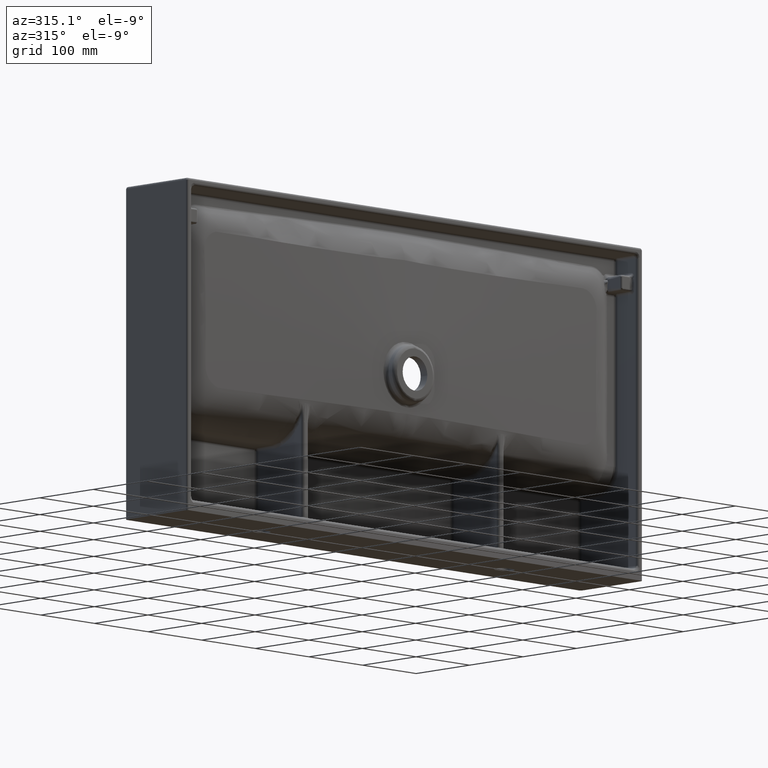
[diagram: clean part render]
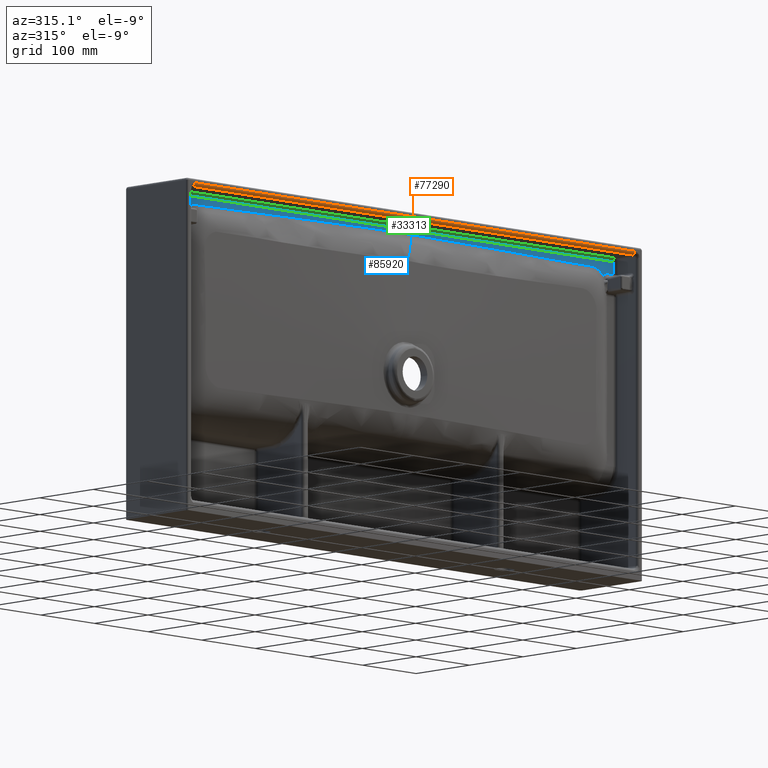
[diagram: same view with three faces highlighted in distinct colors, each labeled with its STEP entity id]
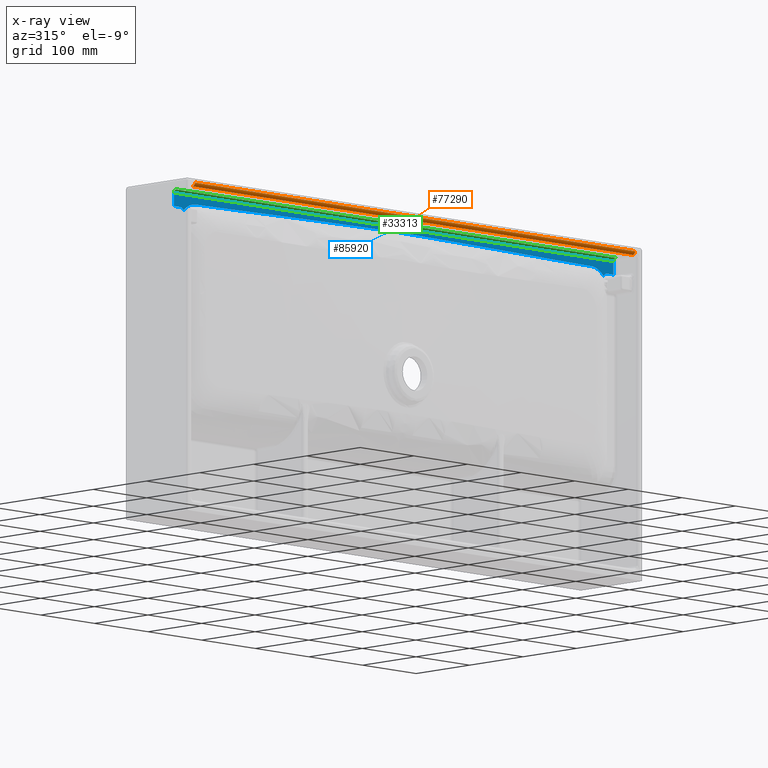
[diagram: x-ray of the same camera — body ghosted, the three highlighted faces saturated]
A machine part, auxiliary view with three faces highlighted in distinct colors.
The next image is the same camera in x-ray (body ghosted, the three faces saturated) — at least one of them is partly hidden behind the body in this view.
Their STEP definitions:

[orange] entity #77290 — the highlighted cylindrical surface (edge-blend (fillet) strip) has radius 4.5 mm, axis along (1, -0, -0).
#788 = DIRECTION ( 'NONE',  ( -2.563535803387919500E-014, -1.000000000000000000, 0.0000000000000000000 ) ) ;
#2906 = CARTESIAN_POINT ( 'NONE',  ( 910.4235084276130000, 4.421464171032118500, 434.9228230558167600 ) ) ;
#8303 = VECTOR ( 'NONE', #21823, 1000.000000000000000 ) ;
#9327 = DIRECTION ( 'NONE',  ( 1.000000000000000000, -2.554807738775109000E-014, -2.510602572680970500E-014 ) ) ;
#11502 = AXIS2_PLACEMENT_3D ( 'NONE', #86085, #40828, #93661 ) ;
#18239 = CARTESIAN_POINT ( 'NONE',  ( 89.57649157238690000, 0.0000000000000000000, 439.4221376840137100 ) ) ;
#21823 = DIRECTION ( 'NONE',  ( -1.000000000000000000, -0.0000000000000000000, -0.0000000000000000000 ) ) ;
#23003 = DIRECTION ( 'NONE',  ( 1.000000000000000000, -2.554807738775046800E-014, -2.510602572681002400E-014 ) ) ;
#23652 = CARTESIAN_POINT ( 'NONE',  ( -5.899999999998684100, 4.500000000000115500, 439.4221376840205800 ) ) ;
#27043 = LINE ( 'NONE', #84112, #60253 ) ;
#28430 = LINE ( 'NONE', #97087, #8303 ) ;
#33895 = CYLINDRICAL_SURFACE ( 'NONE', #51727, 4.500000000000050600 ) ;
#36236 = FACE_OUTER_BOUND ( 'NONE', #72263, .T. ) ;
#36386 = EDGE_CURVE ( 'NONE', #85713, #94582, #28430, .T. ) ;
#38869 = EDGE_CURVE ( 'NONE', #68575, #94582, #76878, .T. ) ;
#38928 = ORIENTED_EDGE ( 'NONE', *, *, #36386, .F. ) ;
#40828 = DIRECTION ( 'NONE',  ( -1.000000000000000000, -3.832211608162474300E-014, -3.765903859021409500E-014 ) ) ;
#47969 = EDGE_CURVE ( 'NONE', #85713, #52602, #50843, .T. ) ;
#50843 = CIRCLE ( 'NONE', #11502, 4.500000000000010700 ) ;
#51727 = AXIS2_PLACEMENT_3D ( 'NONE', #23652, #23003, #788 ) ;
#52030 = ORIENTED_EDGE ( 'NONE', *, *, #38869, .T. ) ;
#52275 = EDGE_CURVE ( 'NONE', #68575, #52602, #27043, .T. ) ;
#52602 = VERTEX_POINT ( 'NONE', #78195 ) ;
#54721 = CARTESIAN_POINT ( 'NONE',  ( 89.57649157238695600, 4.500000000000225600, 439.4221376840207500 ) ) ;
#57174 = CARTESIAN_POINT ( 'NONE',  ( 89.57649157238690000, 4.421464171032340600, 434.9228230558167600 ) ) ;
#60253 = VECTOR ( 'NONE', #77183, 1000.000000000000000 ) ;
#61557 = ORIENTED_EDGE ( 'NONE', *, *, #47969, .T. ) ;
#62330 = DIRECTION ( 'NONE',  ( -2.467162276944675900E-014, -1.000000000000000000, 0.0000000000000000000 ) ) ;
#65074 = ORIENTED_EDGE ( 'NONE', *, *, #52275, .F. ) ;
#68575 = VERTEX_POINT ( 'NONE', #18239 ) ;
#72263 = EDGE_LOOP ( 'NONE', ( #65074, #52030, #38928, #61557 ) ) ;
#76878 = CIRCLE ( 'NONE', #82723, 4.500000000000212300 ) ;
#77183 = DIRECTION ( 'NONE',  ( 1.000000000000000000, 0.0000000000000000000, 0.0000000000000000000 ) ) ;
#77290 = ADVANCED_FACE ( 'NONE', ( #36236 ), #33895, .T. ) ;
#78195 = CARTESIAN_POINT ( 'NONE',  ( 910.4235084276127700, 0.0000000000000000000, 439.4221376840275800 ) ) ;
#82723 = AXIS2_PLACEMENT_3D ( 'NONE', #54721, #9327, #62330 ) ;
#84112 = CARTESIAN_POINT ( 'NONE',  ( 0.0000000000000000000, 0.0000000000000000000, 439.4221376840182000 ) ) ;
#85713 = VERTEX_POINT ( 'NONE', #2906 ) ;
#86085 = CARTESIAN_POINT ( 'NONE',  ( 910.4235084276126600, 4.500000000000003600, 439.4221376840205800 ) ) ;
#93661 = DIRECTION ( 'NONE',  ( -4.934324553889572800E-014, 1.000000000000000000, 0.0000000000000000000 ) ) ;
#94582 = VERTEX_POINT ( 'NONE', #57174 ) ;
#97087 = CARTESIAN_POINT ( 'NONE',  ( 75.00000000000001400, 4.421464171032230400, 434.9228230558168800 ) ) ;

[blue] entity #85920 — the highlighted planar face has unit normal (0, -1, 0).
#4 = VERTEX_POINT ( 'NONE', #42652 ) ;
#291 = EDGE_CURVE ( 'NONE', #39628, #83146, #92291, .T. ) ;
#299 = CARTESIAN_POINT ( 'NONE',  ( 188.7287781595625200, 39.99999999999997900, 419.9671037627641700 ) ) ;
#336 = CARTESIAN_POINT ( 'NONE',  ( 207.1636853963840100, 39.99999999999997900, 420.2647872680011000 ) ) ;
#441 = CARTESIAN_POINT ( 'NONE',  ( 124.1510968933473600, 39.99999999999997900, 418.3307676907874100 ) ) ;
#556 = VERTEX_POINT ( 'NONE', #49170 ) ;
#621 = CARTESIAN_POINT ( 'NONE',  ( 154.0713366757653400, 39.99999999999997900, 419.5267399374397400 ) ) ;
#862 = CARTESIAN_POINT ( 'NONE',  ( 556.8910190774004100, 39.99999999999997900, 423.8149744091118700 ) ) ;
#863 = CARTESIAN_POINT ( 'NONE',  ( 870.9910796849071600, 39.99999999999997900, 419.1553012185992200 ) ) ;
#868 = CARTESIAN_POINT ( 'NONE',  ( 896.2450995168436500, 40.00200656120403400, 412.2275136751644000 ) ) ;
#960 = CARTESIAN_POINT ( 'NONE',  ( 556.8910190774004100, 39.99999999999997900, 423.8149744091118700 ) ) ;
#1203 = CARTESIAN_POINT ( 'NONE',  ( 893.7066108391759400, 39.99836770678139400, 410.8464617944335900 ) ) ;
#1269 = CARTESIAN_POINT ( 'NONE',  ( 249.6511494841083700, 39.99999999999997900, 421.0318288753981100 ) ) ;
#1323 = CARTESIAN_POINT ( 'NONE',  ( 118.7642646055102600, 39.99999999999997900, 416.4221063620420900 ) ) ;
#1534 = CARTESIAN_POINT ( 'NONE',  ( 891.8015843887421900, 39.98792475266977700, 409.2654867944249300 ) ) ;
#1537 = ORIENTED_EDGE ( 'NONE', *, *, #29353, .F. ) ;
#1747 = FACE_OUTER_BOUND ( 'NONE', #12890, .T. ) ;
#1958 = CARTESIAN_POINT ( 'NONE',  ( 659.2744664795061500, 39.99999999999997900, 422.4898663535631200 ) ) ;
#2218 = CARTESIAN_POINT ( 'NONE',  ( 125.2949725652597800, 39.99999999999997900, 418.5752166092506700 ) ) ;
#2398 = B_SPLINE_CURVE_WITH_KNOTS ( 'NONE', 3,
 ( #52176, #44175, #14467, #67360 ),
 .UNSPECIFIED., .F., .F.,
 ( 4, 4 ),
 ( 0.0000000000000000000, 1.000000000000000000 ),
 .UNSPECIFIED. ) ;
#2811 = CARTESIAN_POINT ( 'NONE',  ( 221.0770122959781900, 39.99999999999997900, 420.5093062979739200 ) ) ;
#2842 = CARTESIAN_POINT ( 'NONE',  ( 133.0623304821479800, 39.99999999999997900, 419.3516736199395600 ) ) ;
#2888 = CARTESIAN_POINT ( 'NONE',  ( 816.5690749365312500, 39.99999999999997900, 419.8886300799011300 ) ) ;
#3198 = ORIENTED_EDGE ( 'NONE', *, *, #43394, .F. ) ;
#3250 = B_SPLINE_CURVE_WITH_KNOTS ( 'NONE', 3,
 ( #47200, #39511, #62474, #17086, #69973, #24641, #77520, #32250, #85098, #39850 ),
 .UNSPECIFIED., .F., .F.,
 ( 4, 3, 1, 1, 1, 4 ),
 ( 0.0000000000000000000, 0.1338890557829879900, 0.3474043623841860900, 0.4541607950301322900, 0.5685052418330576200, 1.000000000000000000 ),
 .UNSPECIFIED. ) ;
#3407 = EDGE_CURVE ( 'NONE', #9550, #39628, #38893, .T. ) ;
#3415 = CARTESIAN_POINT ( 'NONE',  ( 140.7613644217378200, 39.99999999999997900, 419.4050770483358400 ) ) ;
#3612 = CARTESIAN_POINT ( 'NONE',  ( 909.8796597188494400, 39.99999999999997900, 429.8796597188504600 ) ) ;
#3781 = CARTESIAN_POINT ( 'NONE',  ( 860.0871258294993100, 39.99999999999997900, 419.4007476446917600 ) ) ;
#4302 = CARTESIAN_POINT ( 'NONE',  ( 867.4542612902657800, 39.99999999999997900, 419.3408655307928800 ) ) ;
#5000 = CARTESIAN_POINT ( 'NONE',  ( 795.4520513940478800, 39.99999999999997900, 420.2204812567951500 ) ) ;
#5193 = CARTESIAN_POINT ( 'NONE',  ( 109.5206612940643700, 40.01316946047229800, 409.7003536159095300 ) ) ;
#5199 = VERTEX_POINT ( 'NONE', #85168 ) ;
#5291 = VERTEX_POINT ( 'NONE', #71347 ) ;
#5523 = CARTESIAN_POINT ( 'NONE',  ( 107.7572569193599300, 40.00308102949266200, 409.5577443339970500 ) ) ;
#5841 = CARTESIAN_POINT ( 'NONE',  ( 105.7518164276116600, 39.99505072094190400, 411.2480902144177400 ) ) ;
#5891 = ORIENTED_EDGE ( 'NONE', *, *, #79449, .F. ) ;
#6168 = CARTESIAN_POINT ( 'NONE',  ( 102.5087617327692200, 40.00267568883551700, 412.5140420795838200 ) ) ;
#6797 = CARTESIAN_POINT ( 'NONE',  ( 852.8208293678383100, 39.99999999999997900, 419.4589671648503200 ) ) ;
#6971 = B_SPLINE_CURVE_WITH_KNOTS ( 'NONE', 3,
 ( #79752, #11732, #42087, #94913 ),
 .UNSPECIFIED., .F., .F.,
 ( 4, 4 ),
 ( 0.0000000000000000000, 1.000000000000000000 ),
 .UNSPECIFIED. ) ;
#7174 = EDGE_CURVE ( 'NONE', #95070, #9550, #64901, .T. ) ;
#7264 = VECTOR ( 'NONE', #15300, 1000.000000000000000 ) ;
#7627 = VERTEX_POINT ( 'NONE', #57712 ) ;
#7892 = EDGE_CURVE ( 'NONE', #7627, #95070, #15509, .T. ) ;
#7968 = CARTESIAN_POINT ( 'NONE',  ( 183.4309250634533200, 39.99999999999997900, 419.8886300822542200 ) ) ;
#8198 = VERTEX_POINT ( 'NONE', #10433 ) ;
#8284 = CARTESIAN_POINT ( 'NONE',  ( 148.7154084336976900, 39.99999999999997900, 419.4745146246295900 ) ) ;
#8294 = CARTESIAN_POINT ( 'NONE',  ( 594.7431905590401600, 39.99999999999997900, 423.3574445407229500 ) ) ;
#8414 = CARTESIAN_POINT ( 'NONE',  ( 881.2357354012399400, 39.99999999999997900, 416.4221063767353100 ) ) ;
#8540 = CARTESIAN_POINT ( 'NONE',  ( 895.6455696920761500, 40.00027432667563700, 412.0104079958476900 ) ) ;
#8749 = CARTESIAN_POINT ( 'NONE',  ( 882.2289388043400300, 39.99999999999997900, 415.9659703849684400 ) ) ;
#8791 = CARTESIAN_POINT ( 'NONE',  ( 118.7642646055102600, 39.99999999999997900, 416.4221063620420900 ) ) ;
#8870 = CARTESIAN_POINT ( 'NONE',  ( 893.2881621435371900, 40.00458093746488700, 410.4989348230033700 ) ) ;
#8995 = CARTESIAN_POINT ( 'NONE',  ( 116.8031668418153000, 39.99999999999997900, 415.4546109721244400 ) ) ;
#9078 = EDGE_CURVE ( 'NONE', #37330, #7627, #70466, .T. ) ;
#9094 = CARTESIAN_POINT ( 'NONE',  ( 883.1968330772965600, 39.99999999999997900, 415.4546107493509300 ) ) ;
#9120 = ORIENTED_EDGE ( 'NONE', *, *, #87768, .T. ) ;
#9212 = CARTESIAN_POINT ( 'NONE',  ( 891.4982785439029800, 39.98383516059052300, 409.1874076051661300 ) ) ;
#9429 = CARTESIAN_POINT ( 'NONE',  ( 884.1325495391381500, 39.99999999999997900, 414.8898179818760900 ) ) ;
#9550 = VERTEX_POINT ( 'NONE', #84859 ) ;
#9642 = CARTESIAN_POINT ( 'NONE',  ( 628.8710019717551600, 39.99999999999997900, 422.9146939046798400 ) ) ;
#9759 = CARTESIAN_POINT ( 'NONE',  ( 884.1433325337027300, 39.99999999999997900, 414.8833102917669700 ) ) ;
#9993 = CARTESIAN_POINT ( 'NONE',  ( 867.7998918014926600, 39.99999999999997900, 419.3335935067539100 ) ) ;
#10010 = EDGE_CURVE ( 'NONE', #53165, #38721, #73285, .T. ) ;
#10086 = ORIENTED_EDGE ( 'NONE', *, *, #45292, .F. ) ;
#10167 = ORIENTED_EDGE ( 'NONE', *, *, #56147, .F. ) ;
#10230 = CARTESIAN_POINT ( 'NONE',  ( 845.9286633241517800, 39.99999999999997900, 419.5267399360544100 ) ) ;
#10271 = VERTEX_POINT ( 'NONE', #91520 ) ;
#10433 = CARTESIAN_POINT ( 'NONE',  ( 859.2386355795807700, 40.00000000000003600, 419.4050773184084200 ) ) ;
#10441 = CARTESIAN_POINT ( 'NONE',  ( 196.6632374372745500, 39.99999999999997900, 420.0905665389774400 ) ) ;
#10447 = CARTESIAN_POINT ( 'NONE',  ( 778.9350874729186700, 39.99999999999997900, 420.5090888736382900 ) ) ;
#10489 = CARTESIAN_POINT ( 'NONE',  ( 212.3951144595099800, 39.99999999999997900, 420.3559918465533700 ) ) ;
#10561 = CARTESIAN_POINT ( 'NONE',  ( 874.7050278072833900, 39.99999999999997900, 418.5752183529574500 ) ) ;
#10570 = CARTESIAN_POINT ( 'NONE',  ( 811.2712218404374200, 39.99999999999997900, 419.9671037627642200 ) ) ;
#10673 = CARTESIAN_POINT ( 'NONE',  ( 875.8489031438476800, 39.99999999999997900, 418.3307675624842000 ) ) ;
#10703 = B_SPLINE_CURVE_WITH_KNOTS ( 'NONE', 3,
 ( #53265, #75946, #30989, #83858, #38592, #91433, #46273, #868, #53934, #8540, #61554, #16176, #69065, #23736, #76596, #31317, #84187, #38925, #91770, #46603, #1203, #54271, #8870, #61891, #16505, #69394, #24053, #76931, #31653, #84508, #39260, #92098, #46937, #1534, #54605, #9212, #62218, #16835, #69714, #24388, #77260, #31989, #84843, #39585, #92427, #47281 ),
 .UNSPECIFIED., .F., .F.,
 ( 4, 2, 2, 2, 2, 2, 2, 2, 2, 2, 2, 2, 2, 2, 2, 2, 2, 2, 2, 2, 2, 2, 4 ),
 ( -10.37002736383061900, -9.073773943350662600, -8.425647233110863600, -7.777520522871064700, -7.129393812631266600, -6.481267102391467600, -5.833140392151669600, -5.509077037031915800, -5.185013681912162800, -4.860950326792409000, -4.536886971672655200, -3.888760261433253300, -3.240633551193849500, -2.916570196074213000, -2.754538518514465300, -2.592506840954716700, -2.268443485835389200, -1.944380130716062600, -1.620316775596737800, -1.296253420477411200, -0.9721900653580846100, -0.6481267102387580100, 0.0000000000000000000 ),
 .UNSPECIFIED. ) ;
#10808 = CARTESIAN_POINT ( 'NONE',  ( 132.5457387176978200, 39.99999999999997900, 419.3408651630376200 ) ) ;
#11127 = CARTESIAN_POINT ( 'NONE',  ( 674.4705446144286000, 39.99999999999997900, 422.2715998773808200 ) ) ;
#11357 = EDGE_CURVE ( 'NONE', #16586, #53165, #20974, .T. ) ;
#11670 = CARTESIAN_POINT ( 'NONE',  ( 132.5457387176978200, 39.99999999999997900, 419.3408651630376200 ) ) ;
#11732 = CARTESIAN_POINT ( 'NONE',  ( 888.4339255951549600, 39.99999999999997900, 411.7321426433625800 ) ) ;
#12296 = VERTEX_POINT ( 'NONE', #42905 ) ;
#12338 = CARTESIAN_POINT ( 'NONE',  ( 499.9999999999998900, 39.99999999999997900, 424.4253062385738000 ) ) ;
#12572 = CARTESIAN_POINT ( 'NONE',  ( 909.8796597188506900, 39.99999999999997900, 429.8796597188506900 ) ) ;
#12697 = B_SPLINE_CURVE_WITH_KNOTS ( 'NONE', 3,
 ( #10808, #56193, #71282, #25979, #78848, #33572 ),
 .UNSPECIFIED., .F., .F.,
 ( 4, 1, 1, 4 ),
 ( 0.0000000000000000000, 0.2927603388542357500, 0.5291265646904186300, 1.000000000000000000 ),
 .UNSPECIFIED. ) ;
#12856 = EDGE_CURVE ( 'NONE', #58745, #30872, #56195, .T. ) ;
#12883 = CARTESIAN_POINT ( 'NONE',  ( 109.2383882082759200, 40.00656724182260900, 409.4633511321607100 ) ) ;
#12890 = EDGE_LOOP ( 'NONE', ( #69690, #39725, #19535, #96472, #9120, #97431, #31922, #3198, #57628, #92698, #10086, #82371, #94553, #61691, #46533, #68530, #75171, #38360, #5891, #89741, #29325, #92968, #42979, #83024, #60807, #63024, #1537, #97703, #49231, #22522, #10167, #87313, #69059, #86097, #79442, #87878, #20542, #45350, #96927, #68443, #47886, #30739, #38266, #48528, #39164, #53781 ) ) ;
#12899 = CARTESIAN_POINT ( 'NONE',  ( 889.1974814366374200, 39.99999999999997900, 410.9933185482217900 ) ) ;
#13177 = CARTESIAN_POINT ( 'NONE',  ( 881.2357354012399400, 39.99999999999997900, 416.4221063767353100 ) ) ;
#13212 = CARTESIAN_POINT ( 'NONE',  ( 107.6343670574782900, 40.00642599253681200, 409.6608773845832200 ) ) ;
#13510 = CARTESIAN_POINT ( 'NONE',  ( 148.7154084336976900, 39.99999999999997900, 419.4745146246295900 ) ) ;
#13527 = CARTESIAN_POINT ( 'NONE',  ( 105.4787738362008300, 39.99538980865268900, 411.4270574520994600 ) ) ;
#13774 = EDGE_CURVE ( 'NONE', #25690, #37330, #22207, .T. ) ;
#13846 = CARTESIAN_POINT ( 'NONE',  ( 101.4763077976070600, 39.99812793582789500, 412.6204737351390600 ) ) ;
#14223 = B_SPLINE_CURVE_WITH_KNOTS ( 'NONE', 3,
 ( #88143, #57604, #50593, #5193, #58252, #12883, #65804, #20476, #73311, #28009, #80908, #35618, #88457, #43229, #96053, #50909, #5523, #58569, #13212, #66122, #20799, #73622, #28322, #81223, #35933, #88767, #43550, #96369, #51230, #5841, #58886, #13527, #66434, #21118, #73943, #28649, #81537, #36253, #89082, #43863, #96694, #51537, #6168, #59194, #13846, #66738 ),
 .UNSPECIFIED., .F., .F.,
 ( 4, 2, 2, 2, 2, 2, 2, 2, 2, 2, 2, 2, 2, 2, 2, 2, 2, 2, 2, 2, 2, 2, 4 ),
 ( 0.0000000000000000000, 0.6481267102395367200, 0.9721900653593050800, 1.296253420479073400, 1.620316775598841900, 1.944380130718610200, 2.268443485838378400, 2.592506840958146900, 2.754538518517963400, 2.916570196077780800, 3.240633551197413800, 3.888760261436792700, 4.536886971676171500, 4.860950326795912900, 5.185013681915654300, 5.509077037035395600, 5.833140392155137900, 6.481267102394499000, 7.129393812633859200, 7.777520522873218500, 8.425647233112579600, 9.073773943351939800, 10.37002736383061900 ),
 .UNSPECIFIED. ) ;
#14337 = EDGE_CURVE ( 'NONE', #86087, #25690, #6971, .T. ) ;
#14467 = CARTESIAN_POINT ( 'NONE',  ( 111.5660743372572300, 39.99999999999997900, 411.7321427227555000 ) ) ;
#14831 = CARTESIAN_POINT ( 'NONE',  ( 889.6562115179509600, 39.99999999999997900, 410.5417054554771400 ) ) ;
#14845 = VERTEX_POINT ( 'NONE', #73138 ) ;
#14990 = CARTESIAN_POINT ( 'NONE',  ( 196.6632374372745500, 39.99999999999997900, 420.0905665389774400 ) ) ;
#15300 = DIRECTION ( 'NONE',  ( 1.000000000000000000, -0.0000000000000000000, -0.0000000000000000000 ) ) ;
#15509 = B_SPLINE_CURVE_WITH_KNOTS ( 'NONE', 3,
 ( #62025, #96062, #10673, #10561 ),
 .UNSPECIFIED., .F., .F.,
 ( 4, 4 ),
 ( 0.0000000000000000000, 1.000000000000000000 ),
 .UNSPECIFIED. ) ;
#15618 = CARTESIAN_POINT ( 'NONE',  ( 178.1162406034473800, 39.99999999999997900, 419.8139537738292700 ) ) ;
#15727 = CARTESIAN_POINT ( 'NONE',  ( 884.1541112663619500, 40.00000000000003600, 414.8767955395712800 ) ) ;
#15749 = CARTESIAN_POINT ( 'NONE',  ( 125.2949725652597800, 39.99999999999997900, 418.5752166092506700 ) ) ;
#16057 = CARTESIAN_POINT ( 'NONE',  ( 884.1648857267354100, 39.99999999999997900, 414.8702737295876700 ) ) ;
#16176 = CARTESIAN_POINT ( 'NONE',  ( 895.0727479295380800, 39.99780790908575100, 411.7448029081055000 ) ) ;
#16187 = EDGE_CURVE ( 'NONE', #64792, #86087, #29587, .T. ) ;
#16388 = CARTESIAN_POINT ( 'NONE',  ( 885.0713606913423100, 39.99999999999997900, 414.3216425787039700 ) ) ;
#16505 = CARTESIAN_POINT ( 'NONE',  ( 892.8040850839345200, 40.01117629222569900, 410.0604276584991800 ) ) ;
#16586 = VERTEX_POINT ( 'NONE', #77525 ) ;
#16621 = CARTESIAN_POINT ( 'NONE',  ( 115.8566674663188400, 39.99999999999997900, 414.8833102917817500 ) ) ;
#16835 = CARTESIAN_POINT ( 'NONE',  ( 891.1929157943757200, 39.98994258593124600, 409.2286142610121800 ) ) ;
#17086 = CARTESIAN_POINT ( 'NONE',  ( 128.5082010560604100, 39.99999999999997900, 419.1020352260806600 ) ) ;
#17369 = EDGE_CURVE ( 'NONE', #5199, #16586, #92943, .T. ) ;
#17380 = CARTESIAN_POINT ( 'NONE',  ( 886.7869065468922800, 39.99999999999997900, 413.0761706770382500 ) ) ;
#17442 = CARTESIAN_POINT ( 'NONE',  ( 886.7869065468922800, 39.99999999999997900, 413.0761706770382500 ) ) ;
#17844 = CARTESIAN_POINT ( 'NONE',  ( 840.5726499204331500, 39.99999999999997900, 419.5821298087586800 ) ) ;
#18051 = CARTESIAN_POINT ( 'NONE',  ( 768.9292547034236800, 39.99999999999997900, 420.6917657654832400 ) ) ;
#18168 = CARTESIAN_POINT ( 'NONE',  ( 805.9815643077308800, 39.99999999999997900, 420.0482657434276900 ) ) ;
#18966 = CARTESIAN_POINT ( 'NONE',  ( 245.7604557902701300, 40.00000000000003600, 420.9619947880073600 ) ) ;
#19227 = VERTEX_POINT ( 'NONE', #34748 ) ;
#19291 = EDGE_CURVE ( 'NONE', #26945, #5199, #51203, .T. ) ;
#19376 = DIRECTION ( 'NONE',  ( 1.000000000000000000, -0.0000000000000000000, -0.0000000000000000000 ) ) ;
#19535 = ORIENTED_EDGE ( 'NONE', *, *, #75437, .T. ) ;
#19702 = CARTESIAN_POINT ( 'NONE',  ( 909.8796597188506900, 39.99999999999997900, 412.6203402811499900 ) ) ;
#20169 = VERTEX_POINT ( 'NONE', #27547 ) ;
#20172 = DIRECTION ( 'NONE',  ( -1.000000000000000000, 0.0000000000000000000, 0.0000000000000000000 ) ) ;
#20234 = CARTESIAN_POINT ( 'NONE',  ( 212.3951144595099800, 39.99999999999997900, 420.3559918465533700 ) ) ;
#20476 = CARTESIAN_POINT ( 'NONE',  ( 108.9177201357810800, 39.99416692864385700, 409.2708276871272800 ) ) ;
#20542 = ORIENTED_EDGE ( 'NONE', *, *, #87859, .F. ) ;
#20727 = B_SPLINE_CURVE_WITH_KNOTS ( 'NONE', 3,
 ( #83337, #75750, #336, #53384 ),
 .UNSPECIFIED., .F., .F.,
 ( 4, 4 ),
 ( 0.0000000000000000000, 1.000000000000000000 ),
 .UNSPECIFIED. ) ;
#20799 = CARTESIAN_POINT ( 'NONE',  ( 107.4340112099414200, 40.01000781628071200, 409.8400780175480800 ) ) ;
#20974 = B_SPLINE_CURVE_WITH_KNOTS ( 'NONE', 3,
 ( #61112, #60481, #60019, #59950 ),
 .UNSPECIFIED., .F., .F.,
 ( 4, 4 ),
 ( 0.0000000000000000000, 1.000000000000000000 ),
 .UNSPECIFIED. ) ;
#21118 = CARTESIAN_POINT ( 'NONE',  ( 105.1132039731760600, 39.99683489958999900, 411.6452432373590700 ) ) ;
#21875 = CARTESIAN_POINT ( 'NONE',  ( 909.8796597188506900, 39.99999999999997900, 418.4000854314018100 ) ) ;
#22207 = B_SPLINE_CURVE_WITH_KNOTS ( 'NONE', 3,
 ( #17380, #30876, #16388, #16057, #15727, #9759, #9429, #9094, #8749, #8414 ),
 .UNSPECIFIED., .F., .F.,
 ( 4, 3, 3, 4 ),
 ( 0.0000000000000000000, 0.4893860679739824300, 0.4952030960120813500, 1.000000000000000000 ),
 .UNSPECIFIED. ) ;
#22522 = ORIENTED_EDGE ( 'NONE', *, *, #42697, .F. ) ;
#23035 = B_SPLINE_CURVE_WITH_KNOTS ( 'NONE', 3,
 ( #48529, #93674, #78843, #33566 ),
 .UNSPECIFIED., .F., .F.,
 ( 4, 4 ),
 ( 0.0000000000000000000, 1.000000000000000000 ),
 .UNSPECIFIED. ) ;
#23145 = CARTESIAN_POINT ( 'NONE',  ( 704.8621765032960400, 39.99999999999997900, 421.7998142015850400 ) ) ;
#23165 = CARTESIAN_POINT ( 'NONE',  ( 172.7847240969224200, 39.99999999999997900, 419.7433270868826300 ) ) ;
#23261 = CARTESIAN_POINT ( 'NONE',  ( 121.9093012452777200, 39.99999999999997900, 417.6589644976178300 ) ) ;
#23418 = VERTEX_POINT ( 'NONE', #34141 ) ;
#23682 = VECTOR ( 'NONE', #26569, 1000.000000000000000 ) ;
#23736 = CARTESIAN_POINT ( 'NONE',  ( 894.6120924780613000, 39.99570502794651400, 411.4831932399421200 ) ) ;
#24053 = CARTESIAN_POINT ( 'NONE',  ( 892.4861386272824600, 40.00905913724895400, 409.7676394232955800 ) ) ;
#24174 = CARTESIAN_POINT ( 'NONE',  ( 115.8351142733297100, 39.99999999999997900, 414.8702737296328000 ) ) ;
#24314 = B_SPLINE_CURVE_WITH_KNOTS ( 'NONE', 3,
 ( #1958, #54697, #9642, #62648 ),
 .UNSPECIFIED., .F., .F.,
 ( 4, 4 ),
 ( 0.0000000000000000000, 1.000000000000000000 ),
 .UNSPECIFIED. ) ;
#24388 = CARTESIAN_POINT ( 'NONE',  ( 890.8665814570795200, 40.00263930108198500, 409.3890794703319800 ) ) ;
#24641 = CARTESIAN_POINT ( 'NONE',  ( 127.8438976637169000, 39.99999999999997900, 419.0212335171954700 ) ) ;
#25288 = CARTESIAN_POINT ( 'NONE',  ( 785.1603313535935100, 40.00000000000003600, 420.3990314093933900 ) ) ;
#25406 = CARTESIAN_POINT ( 'NONE',  ( 835.2165953358851300, 39.99999999999997900, 419.6444283210823300 ) ) ;
#25479 = CARTESIAN_POINT ( 'NONE',  ( 870.9910796849071600, 39.99999999999997900, 419.1553012185992200 ) ) ;
#25690 = VERTEX_POINT ( 'NONE', #17442 ) ;
#25979 = CARTESIAN_POINT ( 'NONE',  ( 130.3955521335562900, 39.99999999999997900, 419.2692134829500800 ) ) ;
#26400 = CARTESIAN_POINT ( 'NONE',  ( 803.3367625627176900, 39.99999999999997900, 420.0905665384919400 ) ) ;
#26522 = CARTESIAN_POINT ( 'NONE',  ( 239.5669891374298600, 39.99999999999997900, 420.8485531368946800 ) ) ;
#26569 = DIRECTION ( 'NONE',  ( -1.000000000000000000, 7.618095171885508000E-017, 1.015746022918067800E-015 ) ) ;
#26748 = CARTESIAN_POINT ( 'NONE',  ( 119.7884637186329400, 40.00000000000003600, 416.8926068649890900 ) ) ;
#26945 = VERTEX_POINT ( 'NONE', #69539 ) ;
#27116 = CARTESIAN_POINT ( 'NONE',  ( 869.6044478731038200, 40.00000000000003600, 419.2692135248635700 ) ) ;
#27402 = LINE ( 'NONE', #53012, #7264 ) ;
#27547 = CARTESIAN_POINT ( 'NONE',  ( 129.0089203113052700, 39.99999999999997900, 419.1553012571525300 ) ) ;
#27869 = VERTEX_POINT ( 'NONE', #88313 ) ;
#28009 = CARTESIAN_POINT ( 'NONE',  ( 108.6007690490745400, 39.98479079083772100, 409.1876629212276300 ) ) ;
#28034 = B_SPLINE_CURVE_WITH_KNOTS ( 'NONE', 3,
 ( #78173, #25288, #10447, #63448, #18051 ),
 .UNSPECIFIED., .F., .F.,
 ( 4, 1, 4 ),
 ( 0.0000000000000000000, 0.3926835870465200100, 1.000000000000000000 ),
 .UNSPECIFIED. ) ;
#28322 = CARTESIAN_POINT ( 'NONE',  ( 107.0362668716267400, 40.00934349934803400, 410.2082720383097000 ) ) ;
#28649 = CARTESIAN_POINT ( 'NONE',  ( 104.5478642163066900, 39.99951884029230300, 411.9273903498912500 ) ) ;
#28755 = EDGE_CURVE ( 'NONE', #14845, #51834, #27402, .T. ) ;
#29286 = CARTESIAN_POINT ( 'NONE',  ( 858.1235142287923700, 39.99999999999997900, 419.4107511072420500 ) ) ;
#29325 = ORIENTED_EDGE ( 'NONE', *, *, #84457, .F. ) ;
#29353 = EDGE_CURVE ( 'NONE', #44743, #26945, #83395, .T. ) ;
#29587 = B_SPLINE_CURVE_WITH_KNOTS ( 'NONE', 3,
 ( #67731, #14831, #37562, #90404 ),
 .UNSPECIFIED., .F., .F.,
 ( 4, 4 ),
 ( 0.0000000000000000000, 1.000000000000000000 ),
 .UNSPECIFIED. ) ;
#30148 = VECTOR ( 'NONE', #58562, 1000.000000000000000 ) ;
#30739 = ORIENTED_EDGE ( 'NONE', *, *, #7892, .F. ) ;
#30754 = CARTESIAN_POINT ( 'NONE',  ( 167.4505276219791500, 39.99999999999997900, 419.6760416313715600 ) ) ;
#30779 = CARTESIAN_POINT ( 'NONE',  ( 110.1196452603761000, 40.00210049839608900, 410.3094561588802700 ) ) ;
#30872 = VERTEX_POINT ( 'NONE', #62183 ) ;
#30876 = CARTESIAN_POINT ( 'NONE',  ( 885.9474812400085300, 39.99999999999997900, 413.7227739346929500 ) ) ;
#30897 = CARTESIAN_POINT ( 'NONE',  ( 121.9093012452777200, 39.99999999999997900, 417.6589644976178300 ) ) ;
#30989 = CARTESIAN_POINT ( 'NONE',  ( 898.1183382763504100, 40.00102766628064900, 412.5951227589417800 ) ) ;
#31195 = CARTESIAN_POINT ( 'NONE',  ( 768.9292547034236800, 39.99999999999997900, 420.6917657654832400 ) ) ;
#31312 = CARTESIAN_POINT ( 'NONE',  ( 871.1581189196158400, 39.99999999999997900, 419.1388255208666500 ) ) ;
#31317 = CARTESIAN_POINT ( 'NONE',  ( 894.3406150520021400, 39.99506020750309400, 411.3104686120411200 ) ) ;
#31653 = CARTESIAN_POINT ( 'NONE',  ( 892.3244746887353400, 40.00550655170677300, 409.6265726669345200 ) ) ;
#31773 = CARTESIAN_POINT ( 'NONE',  ( 114.0525186469610900, 39.99999999999997900, 413.7227741872142100 ) ) ;
#31922 = ORIENTED_EDGE ( 'NONE', *, *, #70828, .F. ) ;
#31938 = EDGE_CURVE ( 'NONE', #4, #10271, #2398, .T. ) ;
#31989 = CARTESIAN_POINT ( 'NONE',  ( 890.5665816135338000, 40.01178332603782900, 409.6202735338436600 ) ) ;
#32069 = CARTESIAN_POINT ( 'NONE',  ( 871.3250322752825200, 39.99999999999997900, 419.1210729576420100 ) ) ;
#32250 = CARTESIAN_POINT ( 'NONE',  ( 126.4965491070257900, 40.00000000000003600, 418.8153813496448900 ) ) ;
#32402 = CARTESIAN_POINT ( 'NONE',  ( 556.8910190774004100, 39.99999999999997900, 423.8149744091118700 ) ) ;
#32684 = CARTESIAN_POINT ( 'NONE',  ( 848.6066402563192200, 40.00000000000003600, 419.5019104003045500 ) ) ;
#33012 = CARTESIAN_POINT ( 'NONE',  ( 829.8823632518921200, 39.99999999999997900, 419.7088355135409200 ) ) ;
#33454 = EDGE_CURVE ( 'NONE', #23418, #44743, #37379, .T. ) ;
#33566 = CARTESIAN_POINT ( 'NONE',  ( 249.6511494841083700, 39.99999999999997900, 421.0318288753981100 ) ) ;
#33572 = CARTESIAN_POINT ( 'NONE',  ( 129.0089203113052700, 39.99999999999997900, 419.1553012571525300 ) ) ;
#34118 = CARTESIAN_POINT ( 'NONE',  ( 231.0707452964402400, 39.99999999999997900, 420.6917657728772000 ) ) ;
#34141 = CARTESIAN_POINT ( 'NONE',  ( 613.6690656370014900, 39.99999999999997900, 423.1118849010738900 ) ) ;
#34748 = CARTESIAN_POINT ( 'NONE',  ( 140.7613644217378200, 39.99999999999997900, 419.4050770483358400 ) ) ;
#34870 = CARTESIAN_POINT ( 'NONE',  ( 405.2568094405162400, 39.99999999999997900, 423.3574443197494500 ) ) ;
#34982 = CARTESIAN_POINT ( 'NONE',  ( 90.12034028114924000, 39.99999999999997900, 429.8796597188497200 ) ) ;
#35014 = B_SPLINE_CURVE_WITH_KNOTS ( 'NONE', 3,
 ( #87943, #35089, #50397, #5000 ),
 .UNSPECIFIED., .F., .F.,
 ( 4, 4 ),
 ( 0.0000000000000000000, 1.000000000000000000 ),
 .UNSPECIFIED. ) ;
#35071 = CARTESIAN_POINT ( 'NONE',  ( 468.6372355520954300, 39.99999999999997900, 424.1202258542372800 ) ) ;
#35089 = CARTESIAN_POINT ( 'NONE',  ( 800.7085070274022200, 39.99999999999997900, 420.1327397228371900 ) ) ;
#35341 = EDGE_CURVE ( 'NONE', #80315, #23418, #24314, .T. ) ;
#35618 = CARTESIAN_POINT ( 'NONE',  ( 108.3007924039841200, 39.98540692829154600, 409.2256535790833700 ) ) ;
#35933 = CARTESIAN_POINT ( 'NONE',  ( 106.5471175092111600, 40.00168648873878400, 410.6417854017221300 ) ) ;
#36024 = VERTEX_POINT ( 'NONE', #20234 ) ;
#36204 = CARTESIAN_POINT ( 'NONE',  ( 795.4520513940478800, 39.99999999999997900, 420.2204812567951500 ) ) ;
#36253 = CARTESIAN_POINT ( 'NONE',  ( 103.9585486862003900, 40.00150873990011700, 412.1603313710878100 ) ) ;
#36957 = B_SPLINE_CURVE_WITH_KNOTS ( 'NONE', 3,
 ( #31195, #84068, #91977, #46820 ),
 .UNSPECIFIED., .F., .F.,
 ( 4, 4 ),
 ( 0.0000000000000000000, 1.000000000000000000 ),
 .UNSPECIFIED. ) ;
#37330 = VERTEX_POINT ( 'NONE', #13177 ) ;
#37379 = B_SPLINE_CURVE_WITH_KNOTS ( 'NONE', 3,
 ( #83952, #8294, #46366, #960 ),
 .UNSPECIFIED., .F., .F.,
 ( 4, 4 ),
 ( 0.0000000000000000000, 1.000000000000000000 ),
 .UNSPECIFIED. ) ;
#37562 = CARTESIAN_POINT ( 'NONE',  ( 889.4287758374898700, 39.99999999999997900, 410.7695036982682400 ) ) ;
#37609 = VERTEX_POINT ( 'NONE', #23261 ) ;
#38080 = EDGE_CURVE ( 'NONE', #57365, #51392, #39029, .T. ) ;
#38266 = ORIENTED_EDGE ( 'NONE', *, *, #9078, .F. ) ;
#38355 = CARTESIAN_POINT ( 'NONE',  ( 162.1053847985256500, 39.99999999999997900, 419.6126832438570800 ) ) ;
#38360 = ORIENTED_EDGE ( 'NONE', *, *, #71943, .F. ) ;
#38592 = CARTESIAN_POINT ( 'NONE',  ( 897.2789653198597100, 40.00299693746397600, 412.4794288318161600 ) ) ;
#38673 = CARTESIAN_POINT ( 'NONE',  ( 340.7255335205317100, 39.99999999999997900, 422.4898663509208100 ) ) ;
#38721 = VERTEX_POINT ( 'NONE', #84302 ) ;
#38867 = EDGE_CURVE ( 'NONE', #52123, #4, #82070, .T. ) ;
#38893 = B_SPLINE_CURVE_WITH_KNOTS ( 'NONE', 3,
 ( #45484, #32069, #31312, #863 ),
 .UNSPECIFIED., .F., .F.,
 ( 4, 4 ),
 ( 0.0000000000000000000, 1.000000000000000000 ),
 .UNSPECIFIED. ) ;
#38925 = CARTESIAN_POINT ( 'NONE',  ( 894.0626884715520600, 39.99553387453288200, 411.1176974945178100 ) ) ;
#39029 = LINE ( 'NONE', #71870, #23682 ) ;
#39164 = ORIENTED_EDGE ( 'NONE', *, *, #14337, .F. ) ;
#39260 = CARTESIAN_POINT ( 'NONE',  ( 892.2016464650089300, 40.00166688021978000, 409.5238285589627500 ) ) ;
#39511 = CARTESIAN_POINT ( 'NONE',  ( 128.8418810800286300, 39.99999999999997900, 419.1388255251417300 ) ) ;
#39540 = B_SPLINE_CURVE_WITH_KNOTS ( 'NONE', 3,
 ( #93062, #55581, #40565, #93398, #48254, #2842, #55912 ),
 .UNSPECIFIED., .F., .F.,
 ( 4, 1, 1, 1, 4 ),
 ( 0.0000000000000000000, 0.3179888573549551300, 0.6696911661773188300, 0.8113295665198169100, 1.000000000000000000 ),
 .UNSPECIFIED. ) ;
#39585 = CARTESIAN_POINT ( 'NONE',  ( 890.2206532872103300, 40.01427685742179800, 409.9483500200443600 ) ) ;
#39628 = VERTEX_POINT ( 'NONE', #72322 ) ;
#39725 = ORIENTED_EDGE ( 'NONE', *, *, #12856, .T. ) ;
#39850 = CARTESIAN_POINT ( 'NONE',  ( 125.2949725652597800, 39.99999999999997900, 418.5752166092506700 ) ) ;
#40006 = CARTESIAN_POINT ( 'NONE',  ( 512.3990355081067500, 40.00000000000003600, 424.3212464504461500 ) ) ;
#40565 = CARTESIAN_POINT ( 'NONE',  ( 138.0564722694717500, 39.99999999999997900, 419.3944006654264700 ) ) ;
#40609 = CARTESIAN_POINT ( 'NONE',  ( 824.5495067464961500, 39.99999999999997900, 419.7778025839918400 ) ) ;
#40802 = CARTESIAN_POINT ( 'NONE',  ( 148.7154084336976900, 39.99999999999997900, 419.4745146246295900 ) ) ;
#40869 = VERTEX_POINT ( 'NONE', #11670 ) ;
#41260 = CARTESIAN_POINT ( 'NONE',  ( 889.8803547403415500, 40.00210049839608900, 410.3094561595726800 ) ) ;
#42087 = CARTESIAN_POINT ( 'NONE',  ( 887.6287279915020500, 39.99999999999997900, 412.4279293619180700 ) ) ;
#42375 = CARTESIAN_POINT ( 'NONE',  ( 487.6009645648823000, 39.99999999999997900, 424.3212467421665800 ) ) ;
#42652 = CARTESIAN_POINT ( 'NONE',  ( 113.2130934398482500, 39.99999999999997900, 413.0761706942590200 ) ) ;
#42694 = CARTESIAN_POINT ( 'NONE',  ( 443.1089809219917000, 39.99999999999997900, 423.8149744598965200 ) ) ;
#42697 = EDGE_CURVE ( 'NONE', #45276, #80315, #84014, .T. ) ;
#42905 = CARTESIAN_POINT ( 'NONE',  ( 787.6048855397989400, 39.99999999999997900, 420.3559918068851300 ) ) ;
#42979 = ORIENTED_EDGE ( 'NONE', *, *, #10010, .F. ) ;
#43229 = CARTESIAN_POINT ( 'NONE',  ( 108.0129336144057200, 39.99408830887011800, 409.3670341971455900 ) ) ;
#43394 = EDGE_CURVE ( 'NONE', #10271, #556, #92460, .T. ) ;
#43550 = CARTESIAN_POINT ( 'NONE',  ( 106.2088155847746300, 39.99747042991049300, 410.9139563175280600 ) ) ;
#43863 = CARTESIAN_POINT ( 'NONE',  ( 103.3444814214852600, 40.00274201821962100, 412.3447805838682700 ) ) ;
#44116 = B_SPLINE_CURVE_WITH_KNOTS ( 'NONE', 3,
 ( #15749, #441, #76159, #30897 ),
 .UNSPECIFIED., .F., .F.,
 ( 4, 4 ),
 ( 0.0000000000000000000, 1.000000000000000000 ),
 .UNSPECIFIED. ) ;
#44175 = CARTESIAN_POINT ( 'NONE',  ( 112.3712720497311300, 39.99999999999997900, 412.4279293154894500 ) ) ;
#44743 = VERTEX_POINT ( 'NONE', #862 ) ;
#45027 = CARTESIAN_POINT ( 'NONE',  ( 787.6048855397989400, 39.99999999999997900, 420.3559918068851300 ) ) ;
#45276 = VERTEX_POINT ( 'NONE', #94460 ) ;
#45292 = EDGE_CURVE ( 'NONE', #37609, #52123, #72804, .T. ) ;
#45350 = ORIENTED_EDGE ( 'NONE', *, *, #94221, .F. ) ;
#45484 = CARTESIAN_POINT ( 'NONE',  ( 871.4918029006515800, 39.99999999999997900, 419.1020699042970800 ) ) ;
#45690 = CARTESIAN_POINT ( 'NONE',  ( 191.3736174550475900, 40.00000000000003600, 420.0069895456623500 ) ) ;
#45748 = VECTOR ( 'NONE', #89863, 1000.000000000000000 ) ;
#46021 = CARTESIAN_POINT ( 'NONE',  ( 156.7492850066614700, 39.99999999999997900, 419.5544346302139600 ) ) ;
#46273 = CARTESIAN_POINT ( 'NONE',  ( 896.6555185785143700, 40.00274201821961400, 412.3447805838683800 ) ) ;
#46366 = CARTESIAN_POINT ( 'NONE',  ( 575.8171218552294000, 39.99999999999997900, 423.5877427950344400 ) ) ;
#46475 = CARTESIAN_POINT ( 'NONE',  ( 750.3488505162698600, 39.99999999999997900, 421.0318288963284200 ) ) ;
#46533 = ORIENTED_EDGE ( 'NONE', *, *, #61900, .F. ) ;
#46603 = CARTESIAN_POINT ( 'NONE',  ( 893.7911844152255300, 39.99747042991049300, 410.9139563175280600 ) ) ;
#46820 = CARTESIAN_POINT ( 'NONE',  ( 750.3488505162698600, 39.99999999999997900, 421.0318288963284200 ) ) ;
#46937 = CARTESIAN_POINT ( 'NONE',  ( 891.9870663855941800, 39.99408830887012600, 409.3670341971457000 ) ) ;
#47200 = CARTESIAN_POINT ( 'NONE',  ( 129.0089203113052700, 39.99999999999997900, 419.1553012571525300 ) ) ;
#47225 = EDGE_CURVE ( 'NONE', #81290, #37609, #44116, .T. ) ;
#47281 = CARTESIAN_POINT ( 'NONE',  ( 889.8803547403415500, 40.00210049839608900, 410.3094561595726800 ) ) ;
#47886 = ORIENTED_EDGE ( 'NONE', *, *, #7174, .F. ) ;
#48254 = CARTESIAN_POINT ( 'NONE',  ( 133.9668288397959900, 39.99999999999997900, 419.3657630688284700 ) ) ;
#48303 = CARTESIAN_POINT ( 'NONE',  ( 819.2180304975023500, 39.99999999999997900, 419.8514097766670800 ) ) ;
#48528 = ORIENTED_EDGE ( 'NONE', *, *, #13774, .F. ) ;
#48529 = CARTESIAN_POINT ( 'NONE',  ( 295.1378234962038500, 39.99999999999997900, 421.7998142329739700 ) ) ;
#48810 = VERTEX_POINT ( 'NONE', #86986 ) ;
#48824 = CARTESIAN_POINT ( 'NONE',  ( 141.8470685576967900, 39.99999999999997900, 419.4106023908692600 ) ) ;
#48860 = CARTESIAN_POINT ( 'NONE',  ( 867.4542612902657800, 39.99999999999997900, 419.3408655307928800 ) ) ;
#49170 = CARTESIAN_POINT ( 'NONE',  ( 110.1196452603761000, 40.00210049839608900, 410.3094561588802700 ) ) ;
#49179 = CARTESIAN_POINT ( 'NONE',  ( 861.9136201802213000, 39.99999999999997900, 419.3945072844395000 ) ) ;
#49231 = ORIENTED_EDGE ( 'NONE', *, *, #35341, .F. ) ;
#50073 = B_SPLINE_CURVE_WITH_KNOTS ( 'NONE', 3,
 ( #48860, #71597, #94332, #49179, #3781, #56849 ),
 .UNSPECIFIED., .F., .F.,
 ( 4, 1, 1, 4 ),
 ( 0.0000000000000000000, 0.3330653870189734200, 0.6901760453809351300, 1.000000000000000000 ),
 .UNSPECIFIED. ) ;
#50289 = CARTESIAN_POINT ( 'NONE',  ( 196.6632374372745500, 39.99999999999997900, 420.0905665389774400 ) ) ;
#50397 = CARTESIAN_POINT ( 'NONE',  ( 798.0802683091981200, 39.99999999999997900, 420.1759653822702500 ) ) ;
#50593 = CARTESIAN_POINT ( 'NONE',  ( 109.7793467127894900, 40.01427685742180500, 409.9483500200444200 ) ) ;
#50903 = CARTESIAN_POINT ( 'NONE',  ( 90.12034028114918300, 39.99999999999997900, 418.4000854314018100 ) ) ;
#50909 = CARTESIAN_POINT ( 'NONE',  ( 107.7983535349909500, 40.00166688021979400, 409.5238285589628000 ) ) ;
#51203 = B_SPLINE_CURVE_WITH_KNOTS ( 'NONE', 3,
 ( #12338, #42375, #35071, #87928, #42694 ),
 .UNSPECIFIED., .F., .F.,
 ( 4, 1, 4 ),
 ( 0.0000000000000000000, 0.6538157202748066100, 1.000000000000000000 ),
 .UNSPECIFIED. ) ;
#51230 = CARTESIAN_POINT ( 'NONE',  ( 105.9373115284476800, 39.99553387453286700, 411.1176974945177000 ) ) ;
#51318 = CARTESIAN_POINT ( 'NONE',  ( 870.4377025311157500, 39.99999999999997900, 419.2098569494580100 ) ) ;
#51392 = VERTEX_POINT ( 'NONE', #34982 ) ;
#51537 = CARTESIAN_POINT ( 'NONE',  ( 102.7210346801399900, 40.00299693746397600, 412.4794288318162200 ) ) ;
#51834 = VERTEX_POINT ( 'NONE', #91042 ) ;
#52123 = VERTEX_POINT ( 'NONE', #8791 ) ;
#52176 = CARTESIAN_POINT ( 'NONE',  ( 113.2130934398482500, 39.99999999999997900, 413.0761706942590200 ) ) ;
#52182 = CARTESIAN_POINT ( 'NONE',  ( 855.4721312064266400, 39.99999999999997900, 419.4305225967576100 ) ) ;
#52295 = EDGE_CURVE ( 'NONE', #20169, #81290, #3250, .T. ) ;
#52879 = EDGE_CURVE ( 'NONE', #40869, #20169, #12697, .T. ) ;
#53012 = CARTESIAN_POINT ( 'NONE',  ( 909.8796597188506900, 39.99999999999997900, 412.6203402811501100 ) ) ;
#53165 = VERTEX_POINT ( 'NONE', #88987 ) ;
#53265 = CARTESIAN_POINT ( 'NONE',  ( 899.0029890038720200, 40.00000468381065100, 412.6204170149137000 ) ) ;
#53348 = CARTESIAN_POINT ( 'NONE',  ( 186.0798622963871800, 39.99999999999997900, 419.9271571530721900 ) ) ;
#53384 = CARTESIAN_POINT ( 'NONE',  ( 204.5479486059510900, 39.99999999999997900, 420.2204812568555800 ) ) ;
#53526 = B_SPLINE_CURVE_WITH_KNOTS ( 'NONE', 3,
 ( #71825, #18966, #26522, #79398, #34118 ),
 .UNSPECIFIED., .F., .F.,
 ( 4, 1, 4 ),
 ( 0.0000000000000000000, 0.6281890315393265900, 1.000000000000000000 ),
 .UNSPECIFIED. ) ;
#53682 = CARTESIAN_POINT ( 'NONE',  ( 151.3933597437883200, 39.99999999999997900, 419.5019103990250100 ) ) ;
#53781 = ORIENTED_EDGE ( 'NONE', *, *, #16187, .F. ) ;
#53934 = CARTESIAN_POINT ( 'NONE',  ( 896.0414513137996000, 40.00150873990011700, 412.1603313710878600 ) ) ;
#54271 = CARTESIAN_POINT ( 'NONE',  ( 893.4528824907885100, 40.00168648873878400, 410.6417854017221300 ) ) ;
#54387 = CARTESIAN_POINT ( 'NONE',  ( 117.7710612910259300, 40.00000000000003600, 415.9659701182237700 ) ) ;
#54398 = VERTEX_POINT ( 'NONE', #36204 ) ;
#54605 = CARTESIAN_POINT ( 'NONE',  ( 891.6992075960159800, 39.98540692829155300, 409.2256535790834300 ) ) ;
#54697 = CARTESIAN_POINT ( 'NONE',  ( 644.0728176829757100, 39.99999999999997900, 422.7081248501215800 ) ) ;
#54819 = CARTESIAN_POINT ( 'NONE',  ( 878.0906987584606900, 39.99999999999997900, 417.6589645090906500 ) ) ;
#55487 = CARTESIAN_POINT ( 'NONE',  ( 879.1606684020358700, 40.00000000000003600, 417.3047912510123800 ) ) ;
#55581 = CARTESIAN_POINT ( 'NONE',  ( 139.8905125974399700, 39.99999999999997900, 419.4006526423410200 ) ) ;
#55840 = CARTESIAN_POINT ( 'NONE',  ( 199.2914929726556500, 39.99999999999997900, 420.1327397190215200 ) ) ;
#55885 = CARTESIAN_POINT ( 'NONE',  ( 214.8517685097238300, 39.99999999999997900, 420.3992434476717200 ) ) ;
#55912 = CARTESIAN_POINT ( 'NONE',  ( 132.5457387176978200, 39.99999999999997900, 419.3408651630376200 ) ) ;
#55957 = CARTESIAN_POINT ( 'NONE',  ( 813.9201377036447400, 39.99999999999997900, 419.9271571558385300 ) ) ;
#56147 = EDGE_CURVE ( 'NONE', #66038, #45276, #85792, .T. ) ;
#56193 = CARTESIAN_POINT ( 'NONE',  ( 132.2001081833628600, 39.99999999999997900, 419.3335932358746200 ) ) ;
#56195 = LINE ( 'NONE', #19702, #73775 ) ;
#56432 = B_SPLINE_CURVE_WITH_KNOTS ( 'NONE', 3,
 ( #89910, #67562, #90235, #45027 ),
 .UNSPECIFIED., .F., .F.,
 ( 4, 4 ),
 ( 0.0000000000000000000, 1.000000000000000000 ),
 .UNSPECIFIED. ) ;
#56519 = CARTESIAN_POINT ( 'NONE',  ( 689.6664572412897800, 39.99999999999997900, 422.0417856900108400 ) ) ;
#56575 = VERTEX_POINT ( 'NONE', #1269 ) ;
#56849 = CARTESIAN_POINT ( 'NONE',  ( 859.2386355795807700, 40.00000000000003600, 419.4050773184084200 ) ) ;
#57365 = VERTEX_POINT ( 'NONE', #3612 ) ;
#57509 = CARTESIAN_POINT ( 'NONE',  ( 424.1828781449107200, 39.99999999999997900, 423.5877428226611400 ) ) ;
#57604 = CARTESIAN_POINT ( 'NONE',  ( 109.9441996084064800, 40.01092240051446000, 410.1273311642129900 ) ) ;
#57628 = ORIENTED_EDGE ( 'NONE', *, *, #31938, .F. ) ;
#57712 = CARTESIAN_POINT ( 'NONE',  ( 878.0906987584606900, 39.99999999999997900, 417.6589645090906500 ) ) ;
#58043 = EDGE_CURVE ( 'NONE', #87039, #66038, #36957, .T. ) ;
#58175 = B_SPLINE_CURVE_WITH_KNOTS ( 'NONE', 3,
 ( #91061, #61162, #2811, #55885, #10489 ),
 .UNSPECIFIED., .F., .F.,
 ( 4, 1, 4 ),
 ( 0.0000000000000000000, 0.6053727412271272500, 1.000000000000000000 ),
 .UNSPECIFIED. ) ;
#58252 = CARTESIAN_POINT ( 'NONE',  ( 109.4334183864665600, 40.01178332603780800, 409.6202735338436000 ) ) ;
#58471 = CARTESIAN_POINT ( 'NONE',  ( 874.7050278072833900, 39.99999999999997900, 418.5752183529574500 ) ) ;
#58562 = DIRECTION ( 'NONE',  ( 0.0000000000000000000, 0.0000000000000000000, -1.000000000000000000 ) ) ;
#58569 = CARTESIAN_POINT ( 'NONE',  ( 107.6755253112648900, 40.00550655170677300, 409.6265726669345200 ) ) ;
#58745 = VERTEX_POINT ( 'NONE', #80773 ) ;
#58886 = CARTESIAN_POINT ( 'NONE',  ( 105.6593849479977100, 39.99506020750309400, 411.3104686120412300 ) ) ;
#59194 = CARTESIAN_POINT ( 'NONE',  ( 101.8816617236498000, 40.00102766628063500, 412.5951227589417800 ) ) ;
#59244 = B_SPLINE_CURVE_WITH_KNOTS ( 'NONE', 3,
 ( #85526, #32684, #10230, #63233, #17844, #70720, #25406, #78291, #33012, #85864, #40609, #93444, #48303, #2888, #55957, #10570, #63559, #18168, #71044 ),
 .UNSPECIFIED., .F., .F.,
 ( 4, 3, 3, 3, 3, 3, 4 ),
 ( 0.0000000000000000000, 0.1675486908492742300, 0.3351046854924836200, 0.5019788833191132200, 0.6687706057398381500, 0.8345128379350801300, 1.000000000000000000 ),
 .UNSPECIFIED. ) ;
#59816 = CARTESIAN_POINT ( 'NONE',  ( 880.2115362828515100, 39.99999999999997900, 416.8926069776197200 ) ) ;
#59825 = CARTESIAN_POINT ( 'NONE',  ( 851.2845915638625900, 39.99999999999997900, 419.4745143916388800 ) ) ;
#59950 = CARTESIAN_POINT ( 'NONE',  ( 340.7255335205317100, 39.99999999999997900, 422.4898663509208100 ) ) ;
#60019 = CARTESIAN_POINT ( 'NONE',  ( 355.9271823180987400, 39.99999999999997900, 422.7081247858489000 ) ) ;
#60481 = CARTESIAN_POINT ( 'NONE',  ( 371.1289980262307600, 39.99999999999997900, 422.9146940251411600 ) ) ;
#60807 = ORIENTED_EDGE ( 'NONE', *, *, #17369, .F. ) ;
#60973 = CARTESIAN_POINT ( 'NONE',  ( 180.7819695024974700, 39.99999999999997900, 419.8514097766672000 ) ) ;
#61112 = CARTESIAN_POINT ( 'NONE',  ( 386.3309343633725300, 39.99999999999997900, 423.1118848722430800 ) ) ;
#61162 = CARTESIAN_POINT ( 'NONE',  ( 227.3022009834138000, 39.99999999999997900, 420.6224484849627200 ) ) ;
#61554 = CARTESIAN_POINT ( 'NONE',  ( 895.4521357836931700, 39.99951884029230300, 411.9273903498913100 ) ) ;
#61691 = ORIENTED_EDGE ( 'NONE', *, *, #52879, .F. ) ;
#61891 = CARTESIAN_POINT ( 'NONE',  ( 892.9637331283734100, 40.00934349934801300, 410.2082720383096400 ) ) ;
#61900 = EDGE_CURVE ( 'NONE', #19227, #40869, #39540, .T. ) ;
#62007 = CARTESIAN_POINT ( 'NONE',  ( 115.8674504608599400, 39.99999999999997900, 414.8898179818780800 ) ) ;
#62025 = CARTESIAN_POINT ( 'NONE',  ( 878.0906987584606900, 39.99999999999997900, 417.6589645090906500 ) ) ;
#62183 = CARTESIAN_POINT ( 'NONE',  ( 909.8796597188494400, 39.99999999999997900, 412.6203402811500500 ) ) ;
#62218 = CARTESIAN_POINT ( 'NONE',  ( 891.3992309509260400, 39.98479079083772100, 409.1876629212276300 ) ) ;
#62474 = CARTESIAN_POINT ( 'NONE',  ( 128.6749677241363400, 39.99999999999997900, 419.1210729514045300 ) ) ;
#62648 = CARTESIAN_POINT ( 'NONE',  ( 613.6690656370014900, 39.99999999999997900, 423.1118849010738900 ) ) ;
#62772 = CARTESIAN_POINT ( 'NONE',  ( 881.2357354012399400, 39.99999999999997900, 416.4221063767353100 ) ) ;
#63024 = ORIENTED_EDGE ( 'NONE', *, *, #19291, .F. ) ;
#63090 = EDGE_CURVE ( 'NONE', #12296, #87039, #28034, .T. ) ;
#63233 = CARTESIAN_POINT ( 'NONE',  ( 843.2507149933384200, 39.99999999999997900, 419.5544346302139600 ) ) ;
#63448 = CARTESIAN_POINT ( 'NONE',  ( 772.7098986848477600, 39.99999999999997900, 420.6222255916196700 ) ) ;
#63559 = CARTESIAN_POINT ( 'NONE',  ( 808.6263825450113200, 39.99999999999997900, 420.0069895531966600 ) ) ;
#64096 = CARTESIAN_POINT ( 'NONE',  ( 659.2744664795061500, 39.99999999999997900, 422.4898663535631200 ) ) ;
#64792 = VERTEX_POINT ( 'NONE', #41260 ) ;
#64901 = B_SPLINE_CURVE_WITH_KNOTS ( 'NONE', 3,
 ( #80269, #77975, #77634, #77294, #76968 ),
 .UNSPECIFIED., .F., .F.,
 ( 4, 1, 4 ),
 ( 0.0000000000000000000, 0.4981980205454201200, 1.000000000000000000 ),
 .UNSPECIFIED. ) ;
#65499 = DIRECTION ( 'NONE',  ( 0.0000000000000000000, -1.000000000000000000, 0.0000000000000000000 ) ) ;
#65804 = CARTESIAN_POINT ( 'NONE',  ( 109.1334185429203000, 40.00263930108197700, 409.3890794703320900 ) ) ;
#66038 = VERTEX_POINT ( 'NONE', #46475 ) ;
#66122 = CARTESIAN_POINT ( 'NONE',  ( 107.5138613727176400, 40.00905913724896100, 409.7676394232955800 ) ) ;
#66434 = CARTESIAN_POINT ( 'NONE',  ( 105.3879075219387900, 39.99570502794649900, 411.4831932399419500 ) ) ;
#66738 = CARTESIAN_POINT ( 'NONE',  ( 100.9970109961279500, 40.00000468381065100, 412.6204170148860200 ) ) ;
#66910 = EDGE_CURVE ( 'NONE', #98044, #19227, #71301, .T. ) ;
#67360 = CARTESIAN_POINT ( 'NONE',  ( 110.8025185910266800, 39.99999999999997900, 410.9933185196385900 ) ) ;
#67541 = CARTESIAN_POINT ( 'NONE',  ( 750.3488505162698600, 39.99999999999997900, 421.0318288963284200 ) ) ;
#67562 = CARTESIAN_POINT ( 'NONE',  ( 792.8363146036066400, 39.99999999999997900, 420.2647872671647600 ) ) ;
#67671 = EDGE_CURVE ( 'NONE', #54398, #12296, #56432, .T. ) ;
#67731 = CARTESIAN_POINT ( 'NONE',  ( 889.8803547403415500, 40.00210049839608900, 410.3094561595726800 ) ) ;
#68066 = EDGE_CURVE ( 'NONE', #76589, #98044, #86001, .T. ) ;
#68250 = LINE ( 'NONE', #21875, #45748 ) ;
#68443 = ORIENTED_EDGE ( 'NONE', *, *, #3407, .F. ) ;
#68489 = CARTESIAN_POINT ( 'NONE',  ( 720.0246386416433800, 39.99999999999997900, 421.5581684652602200 ) ) ;
#68511 = CARTESIAN_POINT ( 'NONE',  ( 175.4504932535182600, 39.99999999999997900, 419.7778025873382700 ) ) ;
#68530 = ORIENTED_EDGE ( 'NONE', *, *, #66910, .F. ) ;
#69059 = ORIENTED_EDGE ( 'NONE', *, *, #63090, .F. ) ;
#69065 = CARTESIAN_POINT ( 'NONE',  ( 894.8867960268239600, 39.99683489959000600, 411.6452432373591800 ) ) ;
#69394 = CARTESIAN_POINT ( 'NONE',  ( 892.5659887900590100, 40.01000781628069800, 409.8400780175480800 ) ) ;
#69510 = CARTESIAN_POINT ( 'NONE',  ( 115.8458887336865600, 39.99999999999997900, 414.8767955395925900 ) ) ;
#69539 = CARTESIAN_POINT ( 'NONE',  ( 499.9999999999998900, 39.99999999999997900, 424.4253062385738000 ) ) ;
#69690 = ORIENTED_EDGE ( 'NONE', *, *, #97307, .F. ) ;
#69714 = CARTESIAN_POINT ( 'NONE',  ( 891.0822798642191200, 39.99416692864385700, 409.2708276871273400 ) ) ;
#69973 = CARTESIAN_POINT ( 'NONE',  ( 128.2422553989802100, 40.00000000000003600, 419.0716749205759600 ) ) ;
#70434 = LINE ( 'NONE', #50903, #30148 ) ;
#70466 = B_SPLINE_CURVE_WITH_KNOTS ( 'NONE', 3,
 ( #62772, #59816, #55487, #54819 ),
 .UNSPECIFIED., .F., .F.,
 ( 4, 4 ),
 ( 0.0000000000000000000, 1.000000000000000000 ),
 .UNSPECIFIED. ) ;
#70572 = VERTEX_POINT ( 'NONE', #26400 ) ;
#70720 = CARTESIAN_POINT ( 'NONE',  ( 837.8946152014054900, 39.99999999999997900, 419.6126832435201700 ) ) ;
#70828 = EDGE_CURVE ( 'NONE', #556, #51834, #14223, .T. ) ;
#71044 = CARTESIAN_POINT ( 'NONE',  ( 803.3367625627176900, 39.99999999999997900, 420.0905665384919400 ) ) ;
#71282 = CARTESIAN_POINT ( 'NONE',  ( 131.5754367046579900, 39.99999999999997900, 419.3182844768409200 ) ) ;
#71301 = B_SPLINE_CURVE_WITH_KNOTS ( 'NONE', 3,
 ( #40802, #86061, #93970, #48824, #3415 ),
 .UNSPECIFIED., .F., .F.,
 ( 4, 1, 4 ),
 ( 0.0000000000000000000, 0.5905195025130191000, 1.000000000000000000 ),
 .UNSPECIFIED. ) ;
#71347 = CARTESIAN_POINT ( 'NONE',  ( 204.5479486059510900, 39.99999999999997900, 420.2204812568555800 ) ) ;
#71597 = CARTESIAN_POINT ( 'NONE',  ( 866.5423004764514900, 39.99999999999997900, 419.3598475821436900 ) ) ;
#71825 = CARTESIAN_POINT ( 'NONE',  ( 249.6511494841083700, 39.99999999999997900, 421.0318288753981100 ) ) ;
#71870 = CARTESIAN_POINT ( 'NONE',  ( 499.9999999999998900, 39.99999999999997900, 429.8796597188508000 ) ) ;
#71943 = EDGE_CURVE ( 'NONE', #5291, #76589, #92051, .T. ) ;
#72322 = CARTESIAN_POINT ( 'NONE',  ( 870.9910796849071600, 39.99999999999997900, 419.1553012185992200 ) ) ;
#72572 = CARTESIAN_POINT ( 'NONE',  ( 443.1089809219917000, 39.99999999999997900, 423.8149744598965200 ) ) ;
#72800 = B_SPLINE_CURVE_WITH_KNOTS ( 'NONE', 3,
 ( #82157, #29286, #52182, #6797, #59825 ),
 .UNSPECIFIED., .F., .F.,
 ( 4, 1, 4 ),
 ( 0.0000000000000000000, 0.4205753748323772800, 1.000000000000000000 ),
 .UNSPECIFIED. ) ;
#72804 = B_SPLINE_CURVE_WITH_KNOTS ( 'NONE', 3,
 ( #79296, #86553, #26748, #79632 ),
 .UNSPECIFIED., .F., .F.,
 ( 4, 4 ),
 ( 0.0000000000000000000, 1.000000000000000000 ),
 .UNSPECIFIED. ) ;
#73138 = CARTESIAN_POINT ( 'NONE',  ( 90.12034028114801700, 39.99999999999997900, 412.6203402811503300 ) ) ;
#73285 = B_SPLINE_CURVE_WITH_KNOTS ( 'NONE', 3,
 ( #38673, #94435, #94299, #94112 ),
 .UNSPECIFIED., .F., .F.,
 ( 4, 4 ),
 ( 0.0000000000000000000, 1.000000000000000000 ),
 .UNSPECIFIED. ) ;
#73311 = CARTESIAN_POINT ( 'NONE',  ( 108.8070842056244500, 39.98994258593123200, 409.2286142610121800 ) ) ;
#73622 = CARTESIAN_POINT ( 'NONE',  ( 107.1959149160657000, 40.01117629222568400, 410.0604276584991800 ) ) ;
#73775 = VECTOR ( 'NONE', #19376, 1000.000000000000000 ) ;
#73831 = CARTESIAN_POINT ( 'NONE',  ( 110.8025185910266800, 39.99999999999997900, 410.9933185196385900 ) ) ;
#73943 = CARTESIAN_POINT ( 'NONE',  ( 104.9272520704617900, 39.99780790908576500, 411.7448029081056100 ) ) ;
#74949 = EDGE_CURVE ( 'NONE', #70572, #54398, #35014, .T. ) ;
#75171 = ORIENTED_EDGE ( 'NONE', *, *, #68066, .F. ) ;
#75437 = EDGE_CURVE ( 'NONE', #30872, #57365, #68250, .T. ) ;
#75750 = CARTESIAN_POINT ( 'NONE',  ( 209.7794019241512400, 39.99999999999997900, 420.3102793283042000 ) ) ;
#75946 = CARTESIAN_POINT ( 'NONE',  ( 898.5236922023927900, 39.99812793582791700, 412.6204737351389400 ) ) ;
#76025 = CARTESIAN_POINT ( 'NONE',  ( 170.1176367481950300, 39.99999999999997900, 419.7088355193217800 ) ) ;
#76047 = CARTESIAN_POINT ( 'NONE',  ( 110.3437885292537700, 39.99999999999997900, 410.5417054318372700 ) ) ;
#76159 = CARTESIAN_POINT ( 'NONE',  ( 123.0198034118456000, 39.99999999999997900, 418.0265871932854800 ) ) ;
#76589 = VERTEX_POINT ( 'NONE', #50289 ) ;
#76596 = CARTESIAN_POINT ( 'NONE',  ( 894.5212261637992700, 39.99538980865268900, 411.4270574520993500 ) ) ;
#76931 = CARTESIAN_POINT ( 'NONE',  ( 892.3656329425217600, 40.00642599253681900, 409.6608773845834400 ) ) ;
#76968 = CARTESIAN_POINT ( 'NONE',  ( 871.4918029006515800, 39.99999999999997900, 419.1020699042970800 ) ) ;
#77051 = CARTESIAN_POINT ( 'NONE',  ( 114.9286394047010400, 39.99999999999997900, 414.3216423682253000 ) ) ;
#77260 = CARTESIAN_POINT ( 'NONE',  ( 890.7616117917242500, 40.00656724182260100, 409.4633511321607100 ) ) ;
#77294 = CARTESIAN_POINT ( 'NONE',  ( 872.0331438156995300, 39.99999999999997900, 419.0402532030989800 ) ) ;
#77520 = CARTESIAN_POINT ( 'NONE',  ( 127.3046891285484700, 39.99999999999997900, 418.9429244452636000 ) ) ;
#77525 = CARTESIAN_POINT ( 'NONE',  ( 386.3309343633725300, 39.99999999999997900, 423.1118848722430800 ) ) ;
#77634 = CARTESIAN_POINT ( 'NONE',  ( 873.1088150497261000, 40.00000000000003600, 418.8899509965677900 ) ) ;
#77684 = CARTESIAN_POINT ( 'NONE',  ( 550.3261824706015700, 39.99999999999997900, 423.8936434139339400 ) ) ;
#77695 = AXIS2_PLACEMENT_3D ( 'NONE', #12572, #65499, #20172 ) ;
#77975 = CARTESIAN_POINT ( 'NONE',  ( 874.1760249485066700, 40.00000000000003600, 418.6882496639963200 ) ) ;
#78166 = CARTESIAN_POINT ( 'NONE',  ( 201.9197316907230700, 39.99999999999997900, 420.1759653872318300 ) ) ;
#78173 = CARTESIAN_POINT ( 'NONE',  ( 787.6048855397989400, 39.99999999999997900, 420.3559918068851300 ) ) ;
#78291 = CARTESIAN_POINT ( 'NONE',  ( 832.5494723779901300, 39.99999999999997900, 419.6760416323514800 ) ) ;
#78843 = CARTESIAN_POINT ( 'NONE',  ( 264.8130894317037600, 39.99999999999997900, 421.3043528302468400 ) ) ;
#78848 = CARTESIAN_POINT ( 'NONE',  ( 129.5622974545488800, 40.00000000000003600, 419.2098569635256800 ) ) ;
#79296 = CARTESIAN_POINT ( 'NONE',  ( 121.9093012452777200, 39.99999999999997900, 417.6589644976178300 ) ) ;
#79398 = CARTESIAN_POINT ( 'NONE',  ( 233.3735412043386100, 40.00000000000003600, 420.7341022980089100 ) ) ;
#79442 = ORIENTED_EDGE ( 'NONE', *, *, #74949, .F. ) ;
#79449 = EDGE_CURVE ( 'NONE', #36024, #5291, #20727, .T. ) ;
#79632 = CARTESIAN_POINT ( 'NONE',  ( 118.7642646055102600, 39.99999999999997900, 416.4221063620420900 ) ) ;
#79752 = CARTESIAN_POINT ( 'NONE',  ( 889.1974814366374200, 39.99999999999997900, 410.9933185482217900 ) ) ;
#80269 = CARTESIAN_POINT ( 'NONE',  ( 874.7050278072833900, 39.99999999999997900, 418.5752183529574500 ) ) ;
#80315 = VERTEX_POINT ( 'NONE', #89926 ) ;
#80773 = CARTESIAN_POINT ( 'NONE',  ( 899.0029890038720200, 40.00000468381065100, 412.6204170149137000 ) ) ;
#80908 = CARTESIAN_POINT ( 'NONE',  ( 108.5017214560970400, 39.98383516059052300, 409.1874076051660700 ) ) ;
#81223 = CARTESIAN_POINT ( 'NONE',  ( 106.7118378564630100, 40.00458093746488000, 410.4989348230032500 ) ) ;
#81290 = VERTEX_POINT ( 'NONE', #2218 ) ;
#81335 = EDGE_CURVE ( 'NONE', #48810, #70572, #59244, .T. ) ;
#81537 = CARTESIAN_POINT ( 'NONE',  ( 104.3544303079237600, 40.00027432667563700, 412.0104079958478000 ) ) ;
#82070 = B_SPLINE_CURVE_WITH_KNOTS ( 'NONE', 3,
 ( #1323, #54387, #8995, #62007, #16621, #69510, #24174, #77051, #31773, #84629 ),
 .UNSPECIFIED., .F., .F.,
 ( 4, 3, 3, 4 ),
 ( 0.0000000000000000000, 0.5047969041527087300, 0.5106139321803566700, 1.000000000000000000 ),
 .UNSPECIFIED. ) ;
#82157 = CARTESIAN_POINT ( 'NONE',  ( 859.2386355795807700, 40.00000000000003600, 419.4050773184084200 ) ) ;
#82371 = ORIENTED_EDGE ( 'NONE', *, *, #47225, .F. ) ;
#82585 = EDGE_CURVE ( 'NONE', #27869, #36024, #58175, .T. ) ;
#83024 = ORIENTED_EDGE ( 'NONE', *, *, #11357, .F. ) ;
#83146 = VERTEX_POINT ( 'NONE', #86450 ) ;
#83298 = CARTESIAN_POINT ( 'NONE',  ( 194.0184356922332000, 40.00000000000003600, 420.0482657485885600 ) ) ;
#83337 = CARTESIAN_POINT ( 'NONE',  ( 212.3951144595099800, 39.99999999999997900, 420.3559918465533700 ) ) ;
#83395 = B_SPLINE_CURVE_WITH_KNOTS ( 'NONE', 3,
 ( #32402, #77684, #85257, #40006, #92839 ),
 .UNSPECIFIED., .F., .F.,
 ( 4, 1, 4 ),
 ( 0.0000000000000000000, 0.3461842738738927200, 1.000000000000000000 ),
 .UNSPECIFIED. ) ;
#83620 = CARTESIAN_POINT ( 'NONE',  ( 164.7834046641149000, 39.99999999999997900, 419.6444283210824400 ) ) ;
#83763 = CARTESIAN_POINT ( 'NONE',  ( 868.4245633001645500, 40.00000000000003600, 419.3182843853726400 ) ) ;
#83858 = CARTESIAN_POINT ( 'NONE',  ( 897.4912382672307600, 40.00267568883550200, 412.5140420795840400 ) ) ;
#83952 = CARTESIAN_POINT ( 'NONE',  ( 613.6690656370014900, 39.99999999999997900, 423.1118849010738900 ) ) ;
#84014 = B_SPLINE_CURVE_WITH_KNOTS ( 'NONE', 3,
 ( #86416, #56519, #11127, #64096 ),
 .UNSPECIFIED., .F., .F.,
 ( 4, 4 ),
 ( 0.0000000000000000000, 1.000000000000000000 ),
 .UNSPECIFIED. ) ;
#84068 = CARTESIAN_POINT ( 'NONE',  ( 762.7357980149757900, 39.99999999999997900, 420.8057398465319400 ) ) ;
#84187 = CARTESIAN_POINT ( 'NONE',  ( 894.2481835723884800, 39.99505072094190400, 411.2480902144177400 ) ) ;
#84302 = CARTESIAN_POINT ( 'NONE',  ( 295.1378234962038500, 39.99999999999997900, 421.7998142329739700 ) ) ;
#84457 = EDGE_CURVE ( 'NONE', #56575, #27869, #53526, .T. ) ;
#84508 = CARTESIAN_POINT ( 'NONE',  ( 892.2427430806400300, 40.00308102949265500, 409.5577443339967700 ) ) ;
#84629 = CARTESIAN_POINT ( 'NONE',  ( 113.2130934398482500, 39.99999999999997900, 413.0761706942590200 ) ) ;
#84843 = CARTESIAN_POINT ( 'NONE',  ( 890.4793387059354500, 40.01316946047229800, 409.7003536159095300 ) ) ;
#84859 = CARTESIAN_POINT ( 'NONE',  ( 871.4918029006515800, 39.99999999999997900, 419.1020699042970800 ) ) ;
#85098 = CARTESIAN_POINT ( 'NONE',  ( 125.8239758184553400, 39.99999999999997900, 418.6882400252792400 ) ) ;
#85168 = CARTESIAN_POINT ( 'NONE',  ( 443.1089809219917000, 39.99999999999997900, 423.8149744598965200 ) ) ;
#85257 = CARTESIAN_POINT ( 'NONE',  ( 531.3627646051995700, 40.00000000000003600, 424.1202262209844800 ) ) ;
#85526 = CARTESIAN_POINT ( 'NONE',  ( 851.2845915638625900, 39.99999999999997900, 419.4745143916388800 ) ) ;
#85738 = CARTESIAN_POINT ( 'NONE',  ( 204.5479486059510900, 39.99999999999997900, 420.2204812568555800 ) ) ;
#85792 = B_SPLINE_CURVE_WITH_KNOTS ( 'NONE', 3,
 ( #67541, #90855, #68489, #23145 ),
 .UNSPECIFIED., .F., .F.,
 ( 4, 4 ),
 ( 0.0000000000000000000, 1.000000000000000000 ),
 .UNSPECIFIED. ) ;
#85864 = CARTESIAN_POINT ( 'NONE',  ( 827.2152759030775500, 39.99999999999997900, 419.7433270868825700 ) ) ;
#85920 = ADVANCED_FACE ( 'NONE', ( #1747 ), #95423, .T. ) ;
#86001 = B_SPLINE_CURVE_WITH_KNOTS ( 'NONE', 3,
 ( #14990, #83298, #45690, #299, #53348, #7968, #60973, #15618, #68511, #23165, #76025, #30754, #83620, #38355, #91197, #46021, #621, #53682, #8284 ),
 .UNSPECIFIED., .F., .F.,
 ( 4, 3, 3, 3, 3, 3, 4 ),
 ( 0.0000000000000000000, 0.1654871620646273200, 0.3312293942599930400, 0.4980211166803547600, 0.6648953145070659600, 0.8324513091507235200, 1.000000000000000000 ),
 .UNSPECIFIED. ) ;
#86061 = CARTESIAN_POINT ( 'NONE',  ( 147.1497546845855900, 39.99999999999997900, 419.4586658552531200 ) ) ;
#86087 = VERTEX_POINT ( 'NONE', #12899 ) ;
#86097 = ORIENTED_EDGE ( 'NONE', *, *, #67671, .F. ) ;
#86416 = CARTESIAN_POINT ( 'NONE',  ( 704.8621765032960400, 39.99999999999997900, 421.7998142015850400 ) ) ;
#86450 = CARTESIAN_POINT ( 'NONE',  ( 867.4542612902657800, 39.99999999999997900, 419.3408655307928800 ) ) ;
#86553 = CARTESIAN_POINT ( 'NONE',  ( 120.8393316006806700, 39.99999999999997900, 417.3047912872626700 ) ) ;
#86986 = CARTESIAN_POINT ( 'NONE',  ( 851.2845915638625900, 39.99999999999997900, 419.4745143916388800 ) ) ;
#87039 = VERTEX_POINT ( 'NONE', #93010 ) ;
#87313 = ORIENTED_EDGE ( 'NONE', *, *, #58043, .F. ) ;
#87722 = CARTESIAN_POINT ( 'NONE',  ( 386.3309343633725300, 39.99999999999997900, 423.1118848722430800 ) ) ;
#87768 = EDGE_CURVE ( 'NONE', #51392, #14845, #70434, .T. ) ;
#87859 = EDGE_CURVE ( 'NONE', #8198, #48810, #72800, .T. ) ;
#87878 = ORIENTED_EDGE ( 'NONE', *, *, #81335, .F. ) ;
#87928 = CARTESIAN_POINT ( 'NONE',  ( 449.6738176150233200, 39.99999999999997900, 423.8936436256652800 ) ) ;
#87943 = CARTESIAN_POINT ( 'NONE',  ( 803.3367625627176900, 39.99999999999997900, 420.0905665384919400 ) ) ;
#88143 = CARTESIAN_POINT ( 'NONE',  ( 110.1196452603761000, 40.00210049839608900, 410.3094561588802700 ) ) ;
#88313 = CARTESIAN_POINT ( 'NONE',  ( 231.0707452964402400, 39.99999999999997900, 420.6917657728772000 ) ) ;
#88457 = CARTESIAN_POINT ( 'NONE',  ( 108.1984156112577000, 39.98792475266977000, 409.2654867944248200 ) ) ;
#88767 = CARTESIAN_POINT ( 'NONE',  ( 106.2933891608242300, 39.99836770678140900, 410.8464617944335400 ) ) ;
#88987 = CARTESIAN_POINT ( 'NONE',  ( 340.7255335205317100, 39.99999999999997900, 422.4898663509208100 ) ) ;
#89082 = CARTESIAN_POINT ( 'NONE',  ( 103.7549004831563300, 40.00200656120404100, 412.2275136751644600 ) ) ;
#89741 = ORIENTED_EDGE ( 'NONE', *, *, #82585, .F. ) ;
#89863 = DIRECTION ( 'NONE',  ( -0.0000000000000000000, -0.0000000000000000000, 1.000000000000000000 ) ) ;
#89910 = CARTESIAN_POINT ( 'NONE',  ( 795.4520513940478800, 39.99999999999997900, 420.2204812567951500 ) ) ;
#89926 = CARTESIAN_POINT ( 'NONE',  ( 659.2744664795061500, 39.99999999999997900, 422.4898663535631200 ) ) ;
#90235 = CARTESIAN_POINT ( 'NONE',  ( 790.2205980758465100, 39.99999999999997900, 420.3102793282138200 ) ) ;
#90404 = CARTESIAN_POINT ( 'NONE',  ( 889.1974814366374200, 39.99999999999997900, 410.9933185482217900 ) ) ;
#90855 = CARTESIAN_POINT ( 'NONE',  ( 735.1869105687487700, 39.99999999999997900, 421.3043528506140700 ) ) ;
#91042 = CARTESIAN_POINT ( 'NONE',  ( 100.9970109961279500, 40.00000468381065100, 412.6204170148860200 ) ) ;
#91061 = CARTESIAN_POINT ( 'NONE',  ( 231.0707452964402400, 39.99999999999997900, 420.6917657728772000 ) ) ;
#91197 = CARTESIAN_POINT ( 'NONE',  ( 159.4273500799300200, 39.99999999999997900, 419.5821298055670900 ) ) ;
#91433 = CARTESIAN_POINT ( 'NONE',  ( 896.8622064178665600, 40.00299303736667200, 412.3948787654090300 ) ) ;
#91520 = CARTESIAN_POINT ( 'NONE',  ( 110.8025185910266800, 39.99999999999997900, 410.9933185196385900 ) ) ;
#91770 = CARTESIAN_POINT ( 'NONE',  ( 893.9700336278197000, 39.99603066531922500, 411.0499792294172600 ) ) ;
#91977 = CARTESIAN_POINT ( 'NONE',  ( 756.5423589488997300, 40.00000000000003600, 420.9206890012339400 ) ) ;
#92051 = B_SPLINE_CURVE_WITH_KNOTS ( 'NONE', 3,
 ( #85738, #78166, #55840, #10441 ),
 .UNSPECIFIED., .F., .F.,
 ( 4, 4 ),
 ( 0.0000000000000000000, 1.000000000000000000 ),
 .UNSPECIFIED. ) ;
#92098 = CARTESIAN_POINT ( 'NONE',  ( 892.0735688224861000, 39.99762087803874500, 409.4284268084907700 ) ) ;
#92291 = B_SPLINE_CURVE_WITH_KNOTS ( 'NONE', 3,
 ( #25479, #51318, #27116, #83763, #9993, #4302 ),
 .UNSPECIFIED., .F., .F.,
 ( 4, 1, 1, 4 ),
 ( 0.0000000000000000000, 0.4708734354899802300, 0.7072396611273615900, 1.000000000000000000 ),
 .UNSPECIFIED. ) ;
#92427 = CARTESIAN_POINT ( 'NONE',  ( 890.0558003915939500, 40.01092240051446000, 410.1273311642135000 ) ) ;
#92460 = B_SPLINE_CURVE_WITH_KNOTS ( 'NONE', 3,
 ( #73831, #96264, #76047, #30779 ),
 .UNSPECIFIED., .F., .F.,
 ( 4, 4 ),
 ( 0.0000000000000000000, 1.000000000000000000 ),
 .UNSPECIFIED. ) ;
#92698 = ORIENTED_EDGE ( 'NONE', *, *, #38867, .F. ) ;
#92839 = CARTESIAN_POINT ( 'NONE',  ( 499.9999999999998900, 39.99999999999997900, 424.4253062385738000 ) ) ;
#92943 = B_SPLINE_CURVE_WITH_KNOTS ( 'NONE', 3,
 ( #72572, #57509, #34870, #87722 ),
 .UNSPECIFIED., .F., .F.,
 ( 4, 4 ),
 ( 0.0000000000000000000, 1.000000000000000000 ),
 .UNSPECIFIED. ) ;
#92968 = ORIENTED_EDGE ( 'NONE', *, *, #94036, .F. ) ;
#93010 = CARTESIAN_POINT ( 'NONE',  ( 768.9292547034236800, 39.99999999999997900, 420.6917657654832400 ) ) ;
#93062 = CARTESIAN_POINT ( 'NONE',  ( 140.7613644217378200, 39.99999999999997900, 419.4050770483358400 ) ) ;
#93398 = CARTESIAN_POINT ( 'NONE',  ( 135.8345364480354400, 39.99999999999997900, 419.3842429675277100 ) ) ;
#93444 = CARTESIAN_POINT ( 'NONE',  ( 821.8837593965618000, 40.00000000000003600, 419.8139537755232000 ) ) ;
#93674 = CARTESIAN_POINT ( 'NONE',  ( 279.9753613579023300, 40.00000000000003600, 421.5581684853364100 ) ) ;
#93970 = CARTESIAN_POINT ( 'NONE',  ( 144.4984528304727600, 39.99999999999997900, 419.4302006293646600 ) ) ;
#94036 = EDGE_CURVE ( 'NONE', #38721, #56575, #23035, .T. ) ;
#94112 = CARTESIAN_POINT ( 'NONE',  ( 295.1378234962038500, 39.99999999999997900, 421.7998142329739700 ) ) ;
#94221 = EDGE_CURVE ( 'NONE', #83146, #8198, #50073, .T. ) ;
#94299 = CARTESIAN_POINT ( 'NONE',  ( 310.3335427542440900, 39.99999999999997900, 422.0417859630180100 ) ) ;
#94332 = CARTESIAN_POINT ( 'NONE',  ( 864.6522502048261500, 39.99999999999997900, 419.3821066782268800 ) ) ;
#94435 = CARTESIAN_POINT ( 'NONE',  ( 325.5294553898133400, 39.99999999999997900, 422.2715996106240400 ) ) ;
#94460 = CARTESIAN_POINT ( 'NONE',  ( 704.8621765032960400, 39.99999999999997900, 421.7998142015850400 ) ) ;
#94553 = ORIENTED_EDGE ( 'NONE', *, *, #52295, .F. ) ;
#94913 = CARTESIAN_POINT ( 'NONE',  ( 886.7869065468922800, 39.99999999999997900, 413.0761706770382500 ) ) ;
#95070 = VERTEX_POINT ( 'NONE', #58471 ) ;
#95423 = PLANE ( 'NONE',  #77695 ) ;
#96053 = CARTESIAN_POINT ( 'NONE',  ( 107.9264311775139900, 39.99762087803874500, 409.4284268084907700 ) ) ;
#96062 = CARTESIAN_POINT ( 'NONE',  ( 876.9801965378195500, 39.99999999999997900, 418.0265873002591700 ) ) ;
#96264 = CARTESIAN_POINT ( 'NONE',  ( 110.5712242272869300, 39.99999999999997900, 410.7695036631616300 ) ) ;
#96369 = CARTESIAN_POINT ( 'NONE',  ( 106.0299663721803800, 39.99603066531922500, 411.0499792294171500 ) ) ;
#96472 = ORIENTED_EDGE ( 'NONE', *, *, #38080, .T. ) ;
#96694 = CARTESIAN_POINT ( 'NONE',  ( 103.1377935821333700, 40.00299303736667200, 412.3948787654090900 ) ) ;
#96927 = ORIENTED_EDGE ( 'NONE', *, *, #291, .F. ) ;
#97307 = EDGE_CURVE ( 'NONE', #58745, #64792, #10703, .T. ) ;
#97431 = ORIENTED_EDGE ( 'NONE', *, *, #28755, .T. ) ;
#97703 = ORIENTED_EDGE ( 'NONE', *, *, #33454, .F. ) ;
#98044 = VERTEX_POINT ( 'NONE', #13510 ) ;

[green] entity #33313 — the highlighted cylindrical surface (edge-blend (fillet) strip) has radius 4.5 mm, axis along (1, -0, -0).
#3612 = CARTESIAN_POINT ( 'NONE',  ( 909.8796597188494400, 39.99999999999997900, 429.8796597188504600 ) ) ;
#7055 = VERTEX_POINT ( 'NONE', #92454 ) ;
#12564 = CARTESIAN_POINT ( 'NONE',  ( 90.12034028114924000, 35.49999999999742100, 429.8796597188483000 ) ) ;
#14724 = ORIENTED_EDGE ( 'NONE', *, *, #59469, .T. ) ;
#15314 = DIRECTION ( 'NONE',  ( -2.563535803387910300E-014, -1.000000000000000000, 0.0000000000000000000 ) ) ;
#16591 = DIRECTION ( 'NONE',  ( -1.000000000000000000, 2.554807738775076500E-014, 2.510602572681026700E-014 ) ) ;
#20162 = DIRECTION ( 'NONE',  ( -2.467162276944755800E-014, -1.000000000000000000, 0.0000000000000000000 ) ) ;
#23682 = VECTOR ( 'NONE', #26569, 1000.000000000000000 ) ;
#24129 = ORIENTED_EDGE ( 'NONE', *, *, #46725, .T. ) ;
#24180 = AXIS2_PLACEMENT_3D ( 'NONE', #24415, #77287, #32016 ) ;
#24415 = CARTESIAN_POINT ( 'NONE',  ( 909.8796597188505800, 35.50000000000008500, 429.8796597188506900 ) ) ;
#26569 = DIRECTION ( 'NONE',  ( -1.000000000000000000, 7.618095171885508000E-017, 1.015746022918067800E-015 ) ) ;
#32016 = DIRECTION ( 'NONE',  ( -2.467162276944805300E-014, -1.000000000000000000, 0.0000000000000000000 ) ) ;
#33313 = ADVANCED_FACE ( 'NONE', ( #67578 ), #45043, .F. ) ;
#34982 = CARTESIAN_POINT ( 'NONE',  ( 90.12034028114924000, 39.99999999999997900, 429.8796597188497200 ) ) ;
#38080 = EDGE_CURVE ( 'NONE', #57365, #51392, #39029, .T. ) ;
#39029 = LINE ( 'NONE', #71870, #23682 ) ;
#45043 = CYLINDRICAL_SURFACE ( 'NONE', #51158, 4.500000000000066600 ) ;
#45366 = VERTEX_POINT ( 'NONE', #87521 ) ;
#46725 = EDGE_CURVE ( 'NONE', #7055, #51392, #80333, .T. ) ;
#49148 = CIRCLE ( 'NONE', #24180, 4.499999999999976000 ) ;
#51158 = AXIS2_PLACEMENT_3D ( 'NONE', #90557, #68518, #15314 ) ;
#51392 = VERTEX_POINT ( 'NONE', #34982 ) ;
#55025 = CARTESIAN_POINT ( 'NONE',  ( -4.301797402871288000, 35.57853582899073100, 434.3789743470540500 ) ) ;
#57365 = VERTEX_POINT ( 'NONE', #3612 ) ;
#59469 = EDGE_CURVE ( 'NONE', #45366, #7055, #68322, .T. ) ;
#62144 = ORIENTED_EDGE ( 'NONE', *, *, #38080, .F. ) ;
#62946 = EDGE_LOOP ( 'NONE', ( #65732, #14724, #24129, #62144 ) ) ;
#65490 = DIRECTION ( 'NONE',  ( -1.000000000000000000, 2.554807738775076500E-014, 2.510602572681026700E-014 ) ) ;
#65732 = ORIENTED_EDGE ( 'NONE', *, *, #91828, .T. ) ;
#67578 = FACE_OUTER_BOUND ( 'NONE', #62946, .T. ) ;
#68322 = LINE ( 'NONE', #55025, #86003 ) ;
#68518 = DIRECTION ( 'NONE',  ( 1.000000000000000000, -2.554807738775076500E-014, -2.510602572681026700E-014 ) ) ;
#71870 = CARTESIAN_POINT ( 'NONE',  ( 499.9999999999998900, 39.99999999999997900, 429.8796597188508000 ) ) ;
#77287 = DIRECTION ( 'NONE',  ( 1.000000000000000000, -1.277403869387474200E-014, -1.255301286340450400E-014 ) ) ;
#80333 = CIRCLE ( 'NONE', #86130, 4.500000000000066600 ) ;
#86003 = VECTOR ( 'NONE', #16591, 1000.000000000000000 ) ;
#86130 = AXIS2_PLACEMENT_3D ( 'NONE', #12564, #65490, #20162 ) ;
#87521 = CARTESIAN_POINT ( 'NONE',  ( 909.8796597188506900, 35.57853582894843200, 434.3789743470431400 ) ) ;
#90557 = CARTESIAN_POINT ( 'NONE',  ( -4.301797402871399000, 35.49999999999986500, 429.8796597188506900 ) ) ;
#91828 = EDGE_CURVE ( 'NONE', #57365, #45366, #49148, .T. ) ;
#92454 = CARTESIAN_POINT ( 'NONE',  ( 90.12034028114935300, 35.57853582897813300, 434.3789743470530900 ) ) ;